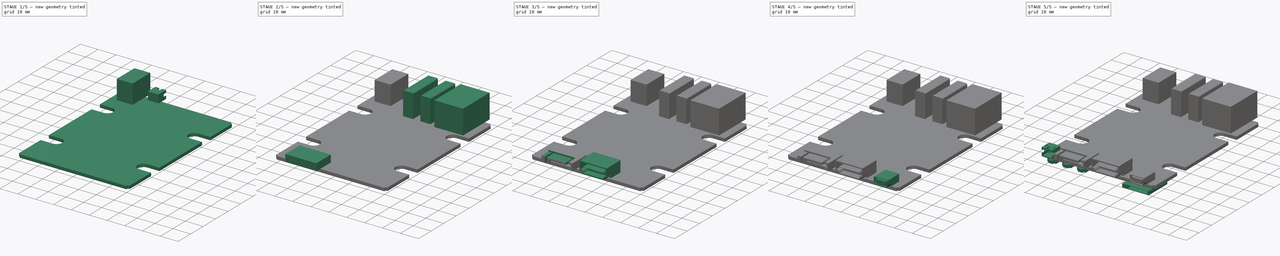
[diagram: build sequence overview — one tinted view per stage of 5, left to right]
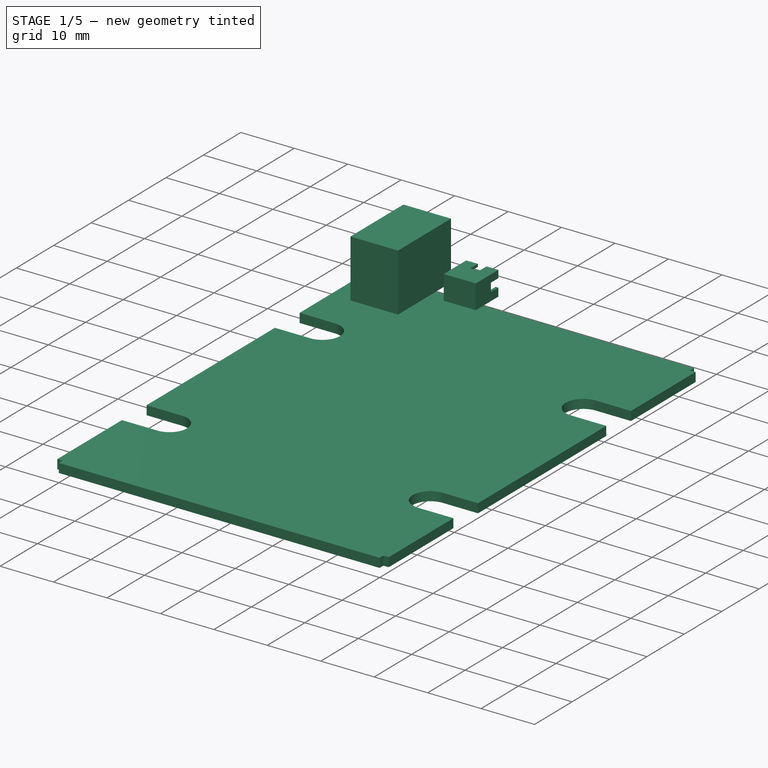
[diagram: stage 1 of 5 — iso view after this stage's code; geometry added in this stage tinted green]
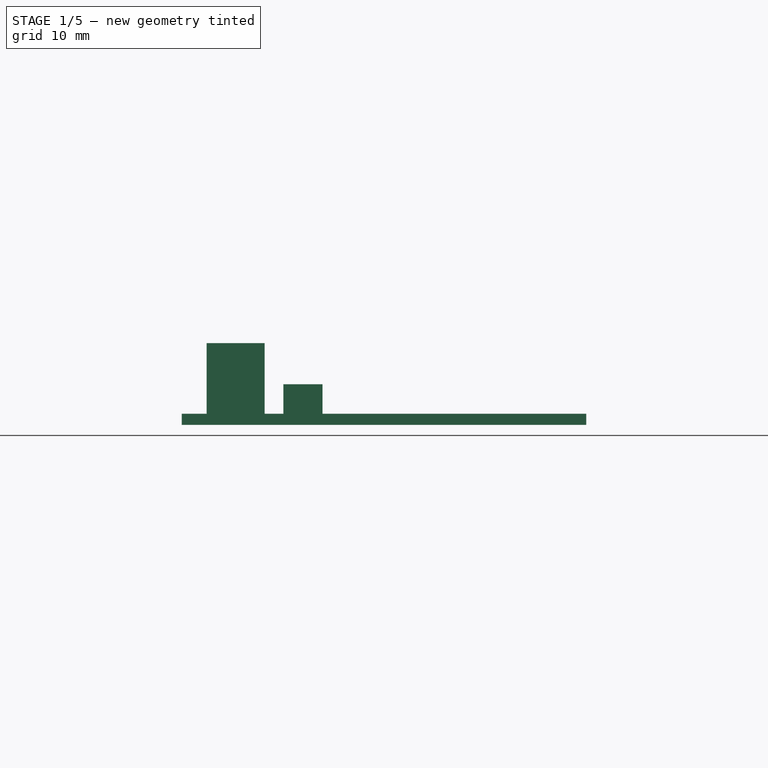
[diagram: stage 1 of 5 — front view after this stage's code; geometry added in this stage tinted green]
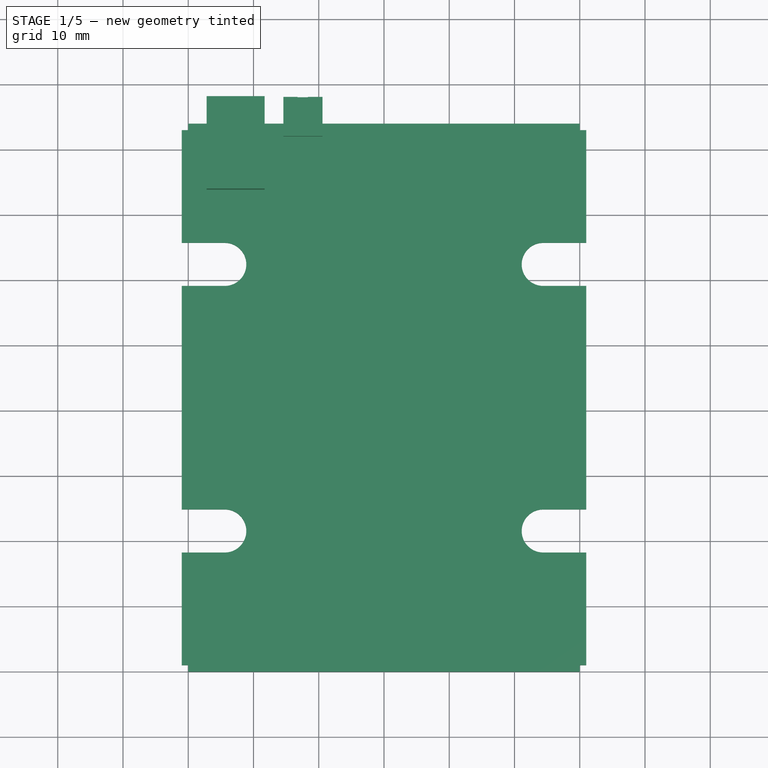
[diagram: stage 1 of 5 — top view after this stage's code; geometry added in this stage tinted green]
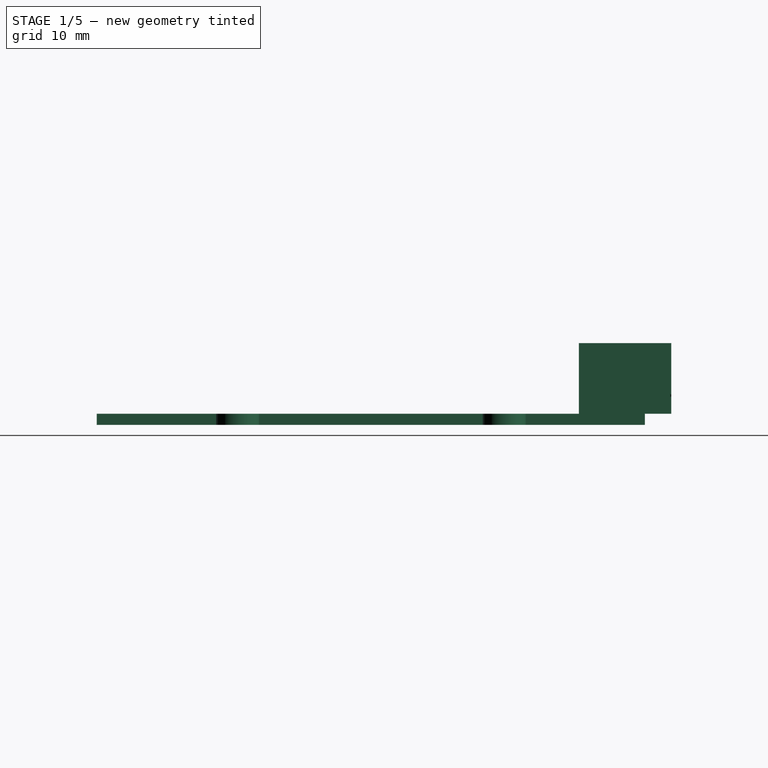
[diagram: stage 1 of 5 — right view after this stage's code; geometry added in this stage tinted green]
FCSTD DOCUMENT  (FreeCAD 0.14R2935 (Git))
Label: apc_0
License: CC-BY 3.0
LicenseURL: http://creativecommons.org/licenses/by/3.0/
objects: Sketcher::SketchObject×23, PartDesign::Fillet×16, PartDesign::Pocket×13, PartDesign::Pad×11, PartDesign::Chamfer×1
note: 88 computed .brp shape members not serialized (recipe doc carries the construction recipe); baked Part::Feature solids carry a one-line shape summary decoded from their .brp

FEATURE [Sketcher::SketchObject] Sketch
  sketch-geometry (30):
    g0: LineSegment StartX=0 StartY=0 StartZ=0 EndX=30 EndY=0 EndZ=0
    g1: LineSegment StartX=30 StartY=0 StartZ=0 EndX=30 EndY=1 EndZ=0
    g2: LineSegment StartX=30 StartY=1 StartZ=0 EndX=31 EndY=1 EndZ=0
    g3: LineSegment StartX=31 StartY=1 StartZ=0 EndX=31 EndY=18.27 EndZ=0
    g4: LineSegment StartX=31 StartY=18.27 StartZ=0 EndX=24.4 EndY=18.27 EndZ=0
    g5: ArcOfCircle CenterX=24.4 CenterY=21.57 CenterZ=0 NormalX=0 NormalY=0 NormalZ=1 Radius=3.3 StartAngle=1.5708 EndAngle=4.71239
    g6: LineSegment StartX=24.4 StartY=24.87 StartZ=0 EndX=31 EndY=24.87 EndZ=0
    g7: LineSegment StartX=31 StartY=24.87 StartZ=0 EndX=31 EndY=59.13 EndZ=0
    g8: LineSegment StartX=31 StartY=59.13 StartZ=0 EndX=24.4 EndY=59.13 EndZ=0
    g9: ArcOfCircle CenterX=24.4 CenterY=62.43 CenterZ=0 NormalX=0 NormalY=0 NormalZ=1 Radius=3.3 StartAngle=1.5708 EndAngle=4.71239
    g10: LineSegment StartX=24.4 StartY=65.73 StartZ=0 EndX=31 EndY=65.73 EndZ=0
    g11: LineSegment StartX=31 StartY=65.73 StartZ=0 EndX=31 EndY=83 EndZ=0
    g12: LineSegment StartX=30 StartY=84 StartZ=0 EndX=0 EndY=84 EndZ=0
    g13: LineSegment StartX=30 StartY=84 StartZ=0 EndX=30 EndY=83 EndZ=0
    g14: LineSegment StartX=30 StartY=83 StartZ=0 EndX=31 EndY=83 EndZ=0
    g15: LineSegment StartX=0 StartY=84 StartZ=0 EndX=-30 EndY=84 EndZ=0
    g16: LineSegment StartX=-30 StartY=84 StartZ=0 EndX=-30 EndY=83 EndZ=0
    g17: LineSegment StartX=-30 StartY=83 StartZ=0 EndX=-31 EndY=83 EndZ=0
    g18: LineSegment StartX=-31 StartY=83 StartZ=0 EndX=-31 EndY=65.73 EndZ=0
    g19: LineSegment StartX=-31 StartY=65.73 StartZ=0 EndX=-24.4 EndY=65.73 EndZ=0
    g20: ArcOfCircle CenterX=-24.4 CenterY=62.43 CenterZ=0 NormalX=0 NormalY=0 NormalZ=1 Radius=3.3 StartAngle=4.71239 EndAngle=7.85398
    g21: LineSegment StartX=-24.4 StartY=59.13 StartZ=0 EndX=-31 EndY=59.13 EndZ=0
    g22: LineSegment StartX=-31 StartY=59.13 StartZ=0 EndX=-31 EndY=24.87 EndZ=0
    g23: LineSegment StartX=-31 StartY=24.87 StartZ=0 EndX=-24.4 EndY=24.87 EndZ=0
    g24: ArcOfCircle CenterX=-24.4 CenterY=21.57 CenterZ=0 NormalX=0 NormalY=0 NormalZ=1 Radius=3.3 StartAngle=4.71239 EndAngle=7.85398
    g25: LineSegment StartX=-24.4 StartY=18.27 StartZ=0 EndX=-31 EndY=18.27 EndZ=0
    g26: LineSegment StartX=-31 StartY=18.27 StartZ=0 EndX=-31 EndY=1 EndZ=0
    g27: LineSegment StartX=-31 StartY=1 StartZ=0 EndX=-30 EndY=1 EndZ=0
    g28: LineSegment StartX=-30 StartY=1 StartZ=0 EndX=-30 EndY=0 EndZ=0
    g29: LineSegment StartX=-30 StartY=0 StartZ=0 EndX=0 EndY=0 EndZ=0
  constraints (90):
    c: Horizontal(g0)
    c: Coincident(g0,g1)
    c: Vertical(g1)
    c: Coincident(g1,g2)
    c: Horizontal(g2)
    c: Coincident(g2,g3)
    c: Vertical(g3)
    c: DistanceY(g1) = 1
    c: DistanceX(g2) = 1
    c: DistanceX(g0) = 30
    c: Coincident(g3,g4)
    c: Tangent(g4,g5)
    c: Tangent(g5,g6)
    c: Coincident(g6,g7)
    c: Vertical(g7)
    c: Equal(g4,g6)
    c: Horizontal(g6)
    c: Horizontal(g4)
    c: Radius(g5) = 3.3
    c: Equal(g4,g6)
    c: Coincident(g7,g8)
    c: Tangent(g8,g9)
    c: Tangent(g9,g10)
    c: Coincident(g10,g11)
    c: Vertical(g11)
    c: Equal(g10,g8)
    c: Parallel(g10,g8)
    c: Horizontal(g10)
    c: Equal(g6,g8)
    c: Equal(g9,g5)
    c: DistanceY(g3,g7) = 40.86
    c: Equal(g3,g11)
    c: Horizontal(g12)
    c: Equal(g0,g12)
    c: Coincident(g0,g-1)
    c: Coincident(g13,g12)
    c: Coincident(g14,g13)
    c: Coincident(g14,g11)
    c: Horizontal(g14)
    c: Perpendicular(g14,g13)
    c: Equal(g14,g2)
    c: Equal(g14,g2)
    c: Equal(g1,g13)
    c: Equal(g1,g13)
    c: Equal(g2,g14)
    c: DistanceY(g3) = 17.27
    c: DistanceX(g4) = -6.6
    c: Coincident(g12,g15)
    c: Horizontal(g15)
    c: Coincident(g15,g16)
    c: Vertical(g16)
    c: Coincident(g16,g17)
    c: Horizontal(g17)
    c: Coincident(g17,g18)
    c: Vertical(g18)
    c: Coincident(g18,g19)
    c: Horizontal(g19)
    c: Tangent(g19,g20)
    c: Tangent(g20,g21)
    c: Coincident(g21,g22)
    c: Vertical(g22)
    c: Coincident(g22,g23)
    c: Horizontal(g23)
    c: Tangent(g23,g24)
    c: Tangent(g24,g25)
    c: Coincident(g25,g26)
    c: Vertical(g26)
    c: Coincident(g26,g27)
    c: Horizontal(g27)
    c: Coincident(g27,g28)
    c: Vertical(g28)
    c: Coincident(g28,g29)
    c: Coincident(g29,g-1)
    c: Horizontal(g29)
    c: Equal(g28,g1)
    c: Equal(g1,g27)
    c: Equal(g29,g0)
    c: Equal(g26,g3)
    c: Equal(g25,g4)
    c: Horizontal(g25)
    c: Equal(g23,g25)
    c: Equal(g24,g5)
    c: Equal(g22,g7)
    c: Equal(g21,g8)
    c: Equal(g19,g21)
    c: Parallel(g19,g21)
    c: Equal(g16,g17)
    c: Equal(g17,g14)
    c: Equal(g15,g12)
    c: Equal(g20,g9)
FEATURE [PartDesign::Pad] Pad
  Length = 1.7
  Length2 = 100
  Sketch = -> Sketch
  Type = 0
FEATURE [PartDesign::Pad] Pad009
  Length = 4.52
  Length2 = 100
  Sketch = -> Sketch002
  Type = 0
FEATURE [PartDesign::Pad] Pad010
  Length = 10.82
  Length2 = 100
  Sketch = -> Sketch001
  Type = 0
FEATURE [Sketcher::SketchObject] Sketch021
  ExternalGeometry = -> [Pad010]
  Placement = pos=(0,88.03,0) rot=(0,0.707107,0.707107;3.14159rad)
  Support = -> Pad010 [Face37]
  sketch-geometry (4):
    g0: Circle CenterX=22.74 CenterY=8.02 CenterZ=0 NormalX=0 NormalY=0 NormalZ=1 Radius=3.185
    g1: Circle CenterX=22.74 CenterY=8.02 CenterZ=0 NormalX=0 NormalY=0 NormalZ=1 Radius=1
    g2: LineSegment [constr] StartX=22.74 StartY=12.52 StartZ=0 EndX=22.74 EndY=1.7 EndZ=0
    g3: LineSegment [constr] StartX=18.29 StartY=8.02 StartZ=0 EndX=27.19 EndY=8.02 EndZ=0
  constraints (13):
    c: Radius(g1) = 1
    c: Radius(g0) = 3.185
    c: Vertical(g2)
    c: Horizontal(g3)
    c: DistanceX(g2,g-4) = 4.45
    c: PointOnObject(g2,g-4)
    c: PointOnObject(g2,g-5)
    c: DistanceY(g3,g-4) = 4.5
    c: PointOnObject(g3,g-3)
    c: PointOnObject(g3,g-6)
    c: PointOnObject(g0,g2)
    c: Coincident(g1,g0)
    c: PointOnObject(g0,g3)
FEATURE [PartDesign::Pocket] Pocket010
  Length = 10
  Sketch = -> Sketch021
  Type = 0
FEATURE [PartDesign::Fillet] Fillet014
  Base = -> Pocket010 [Edge111]
  Radius = 1
FEATURE [Sketcher::SketchObject] Sketch022
  ExternalGeometry = -> [Pad009]
  Placement = pos=(0,88.03,0) rot=(0,0.707107,0.707107;3.14159rad)
  Support = -> Pad009 [Face37]
  sketch-geometry (12):
    g0: LineSegment StartX=9.93 StartY=5.72 StartZ=0 EndX=14.93 EndY=5.72 EndZ=0
    g1: LineSegment StartX=14.93 StartY=5.72 StartZ=0 EndX=14.93 EndY=2.2 EndZ=0
    g2: LineSegment StartX=14.93 StartY=2.2 StartZ=0 EndX=9.93 EndY=2.2 EndZ=0
    g3: LineSegment StartX=9.93 StartY=2.2 StartZ=0 EndX=9.93 EndY=5.72 EndZ=0
    g4: LineSegment StartX=11.25 StartY=4.76 StartZ=0 EndX=11.75 EndY=4.76 EndZ=0
    g5: LineSegment StartX=11.75 StartY=4.76 StartZ=0 EndX=11.75 EndY=4.26 EndZ=0
    g6: LineSegment StartX=11.75 StartY=4.26 StartZ=0 EndX=11.25 EndY=4.26 EndZ=0
    g7: LineSegment StartX=11.25 StartY=4.26 StartZ=0 EndX=11.25 EndY=4.76 EndZ=0
    g8: LineSegment StartX=13.25 StartY=4.76 StartZ=0 EndX=13.75 EndY=4.76 EndZ=0
    g9: LineSegment StartX=13.75 StartY=4.76 StartZ=0 EndX=13.75 EndY=4.26 EndZ=0
    g10: LineSegment StartX=13.75 StartY=4.26 StartZ=0 EndX=13.25 EndY=4.26 EndZ=0
    g11: LineSegment StartX=13.25 StartY=4.26 StartZ=0 EndX=13.25 EndY=4.76 EndZ=0
  constraints (40):
    c: Coincident(g0,g1)
    c: Coincident(g1,g2)
    c: Coincident(g2,g3)
    c: Coincident(g3,g0)
    c: Horizontal(g0)
    c: Horizontal(g2)
    c: Vertical(g1)
    c: Vertical(g3)
    c: DistanceX(g0,g-4) = 0.5
    c: DistanceY(g0,g-4) = 0.5
    c: DistanceX(g2,g-6) = -0.5
    c: DistanceY(g2,g-6) = -0.5
    c: Coincident(g4,g5)
    c: Coincident(g5,g6)
    c: Coincident(g6,g7)
    c: Coincident(g7,g4)
    c: Horizontal(g4)
    c: Horizontal(g6)
    c: Vertical(g5)
    c: Vertical(g7)
    c: Coincident(g8,g9)
    c: Coincident(g9,g10)
    c: Coincident(g10,g11)
    c: Coincident(g11,g8)
    c: Horizontal(g8)
    c: Horizontal(g10)
    c: Vertical(g9)
    c: Vertical(g11)
    c: Equal(g10,g9)
    c: Equal(g9,g8)
    c: Equal(g8,g11)
    c: Equal(g11,g5)
    c: Equal(g5,g6)
    c: Equal(g6,g7)
    c: Equal(g7,g4)
    c: DistanceX(g6,g9) = 2.5
    c: DistanceX(g6) = -0.5
    c: DistanceY(g5,g10) = 0
    c: DistanceX(g5,g-5) = -2.32
    c: DistanceY(g6,g-5) = 1.96
FEATURE [PartDesign::Pocket] Pocket011
  Length = 5
  Sketch = -> Sketch022
  Type = 0
FEATURE [Sketcher::SketchObject] Sketch023
  ExternalGeometry = -> [Pocket011]
  Placement = pos=(0,88.03,0) rot=(0,0.707107,0.707107;3.14159rad)
  Support = -> Pocket011 [Face37]
  sketch-geometry (12):
    g0: LineSegment StartX=9.43 StartY=4.82 StartZ=0 EndX=9.93 EndY=4.82 EndZ=0
    g1: LineSegment StartX=9.93 StartY=4.82 StartZ=0 EndX=9.93 EndY=3.22 EndZ=0
    g2: LineSegment StartX=9.93 StartY=3.22 StartZ=0 EndX=9.43 EndY=3.22 EndZ=0
    g3: LineSegment StartX=9.43 StartY=3.22 StartZ=0 EndX=9.43 EndY=4.82 EndZ=0
    g4: LineSegment StartX=14.93 StartY=4.82 StartZ=0 EndX=15.43 EndY=4.82 EndZ=0
    g5: LineSegment StartX=15.43 StartY=4.82 StartZ=0 EndX=15.43 EndY=3.22 EndZ=0
    g6: LineSegment StartX=15.43 StartY=3.22 StartZ=0 EndX=14.93 EndY=3.22 EndZ=0
    g7: LineSegment StartX=14.93 StartY=3.22 StartZ=0 EndX=14.93 EndY=4.82 EndZ=0
    g8: LineSegment StartX=11.65 StartY=6.22 StartZ=0 EndX=13.25 EndY=6.22 EndZ=0
    g9: LineSegment StartX=13.25 StartY=6.22 StartZ=0 EndX=13.25 EndY=5.72 EndZ=0
    g10: LineSegment StartX=13.25 StartY=5.72 StartZ=0 EndX=11.65 EndY=5.72 EndZ=0
    g11: LineSegment StartX=11.65 StartY=5.72 StartZ=0 EndX=11.65 EndY=6.22 EndZ=0
  constraints (42):
    c: Coincident(g0,g1)
    c: Coincident(g1,g2)
    c: Coincident(g2,g3)
    c: Coincident(g3,g0)
    c: Horizontal(g0)
    c: Horizontal(g2)
    c: Vertical(g1)
    c: Vertical(g3)
    c: Coincident(g4,g5)
    c: Coincident(g5,g6)
    c: Coincident(g6,g7)
    c: Coincident(g7,g4)
    c: Horizontal(g4)
    c: Horizontal(g6)
    c: Vertical(g5)
    c: Vertical(g7)
    c: Coincident(g8,g9)
    c: Coincident(g9,g10)
    c: Coincident(g10,g11)
    c: Coincident(g11,g8)
    c: Horizontal(g8)
    c: Horizontal(g10)
    c: Vertical(g9)
    c: Vertical(g11)
    c: Equal(g11,g9)
    c: Equal(g9,g0)
    c: Equal(g0,g2)
    c: Equal(g2,g4)
    c: Equal(g4,g6)
    c: Equal(g1,g3)
    c: Equal(g3,g10)
    c: Equal(g10,g8)
    c: Equal(g8,g7)
    c: Equal(g7,g5)
    c: DistanceX(g10) = -1.6
    c: PointOnObject(g5,g-8)
    c: PointOnObject(g6,g-7)
    c: PointOnObject(g2,g-3)
    c: PointOnObject(g8,g-5)
    c: DistanceY(g6,g1) = 0
    c: DistanceY(g0,g-5) = 1.4
    c: DistanceX(g-5,g8) = 2.22003
FEATURE [PartDesign::Pocket] Pocket012
  Length = 2
  Sketch = -> Sketch023
  Type = 0
FEATURE [PartDesign::Fillet] Fillet015
  Base = -> Pocket012 [Edge164,Edge166,Edge168,Edge170,Edge172,Edge174,Edge176,Edge178]
  Radius = 0.2
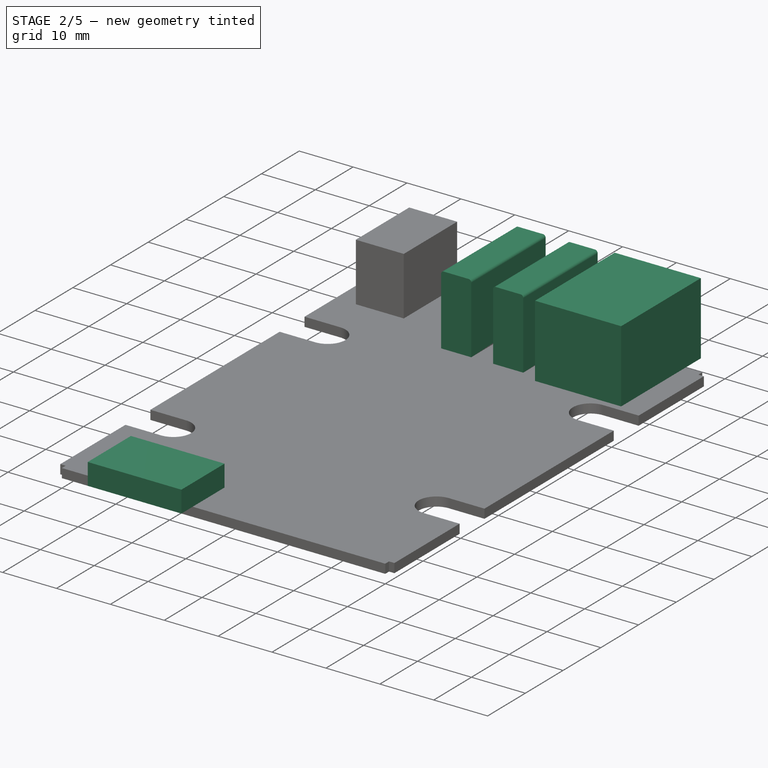
[diagram: stage 2 of 5 — iso view after this stage's code; geometry added in this stage tinted green]
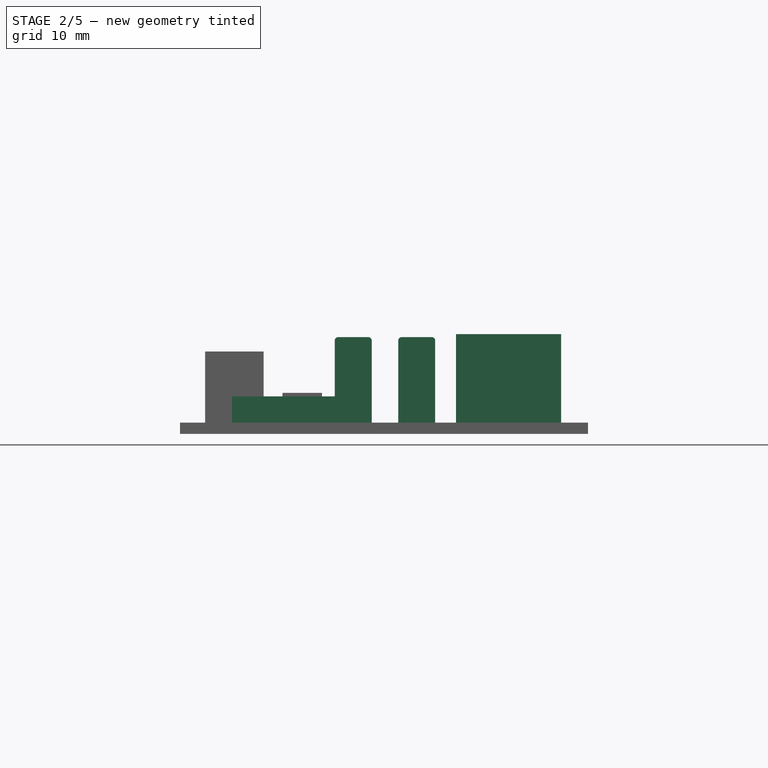
[diagram: stage 2 of 5 — front view after this stage's code; geometry added in this stage tinted green]
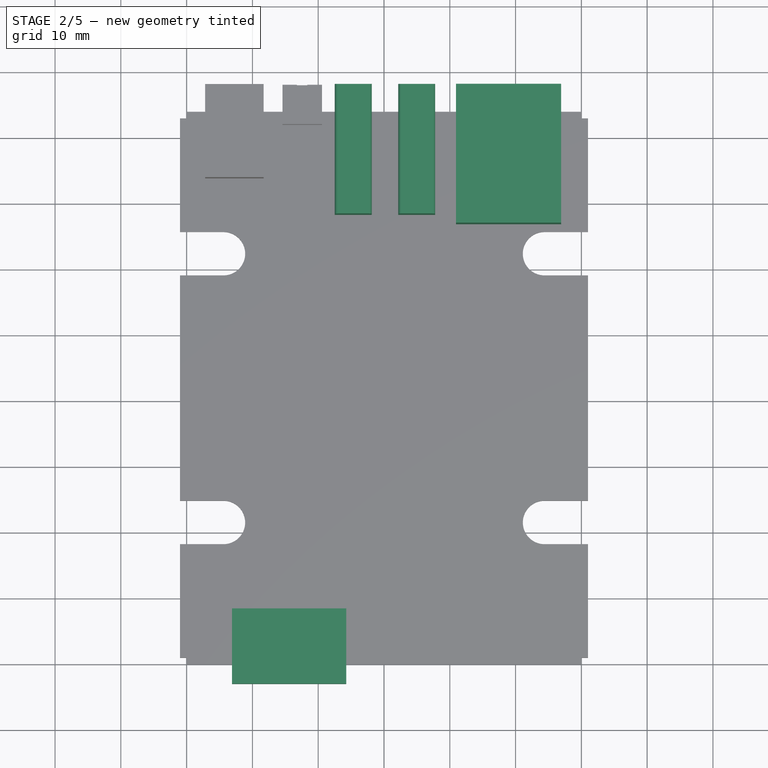
[diagram: stage 2 of 5 — top view after this stage's code; geometry added in this stage tinted green]
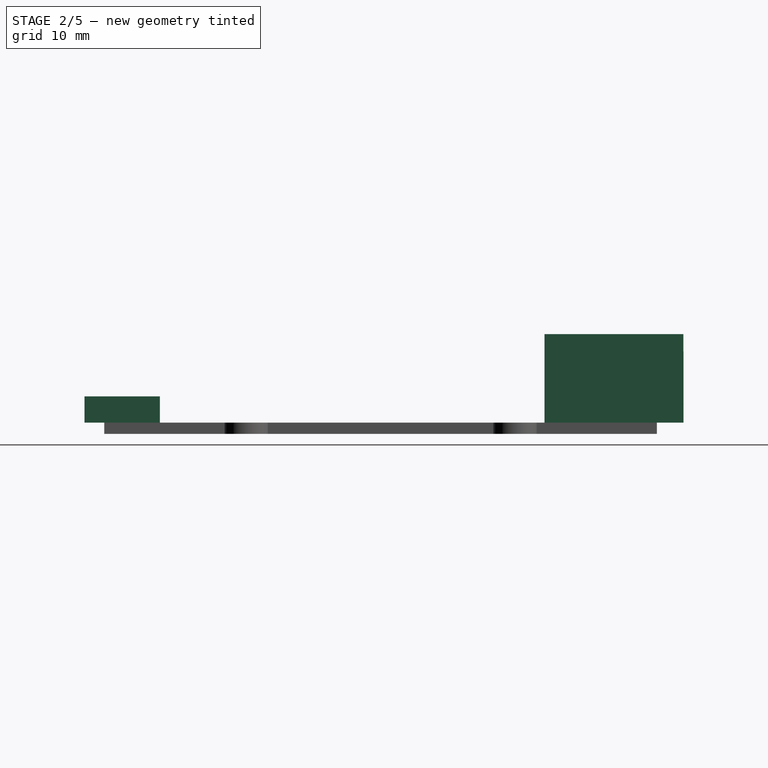
[diagram: stage 2 of 5 — right view after this stage's code; geometry added in this stage tinted green]
FEATURE [PartDesign::Pad] Pad004
  Length = 4
  Length2 = 100
  Sketch = -> Sketch007
  Type = 0
FEATURE [PartDesign::Pad] Pad007
  Length = 13.45
  Length2 = 100
  Sketch = -> Sketch004
  Type = 0
FEATURE [PartDesign::Pad] Pad008
  Length = 13
  Length2 = 100
  Sketch = -> Sketch003
  Type = 0
FEATURE [Sketcher::SketchObject] Sketch019
  ExternalGeometry = -> [Pad007]
  Placement = pos=(0,88.02,0) rot=(0,0.707107,0.707107;3.14159rad)
  Support = -> Pad007 [Face37]
  sketch-geometry (12):
    g0: LineSegment StartX=-24.825 StartY=12.65 StartZ=0 EndX=-24.825 EndY=5.72 EndZ=0
    g1: LineSegment StartX=-24.825 StartY=5.72 StartZ=0 EndX=-21.915 EndY=5.72 EndZ=0
    g2: LineSegment StartX=-21.915 StartY=5.72 StartZ=0 EndX=-21.915 EndY=4.02 EndZ=0
    g3: LineSegment StartX=-21.915 StartY=4.02 StartZ=0 EndX=-20.97 EndY=4.02 EndZ=0
    g4: LineSegment StartX=-20.97 StartY=4.02 StartZ=0 EndX=-20.97 EndY=2.6 EndZ=0
    g5: LineSegment StartX=-20.97 StartY=2.6 StartZ=0 EndX=-16.9 EndY=2.6 EndZ=0
    g6: LineSegment StartX=-16.9 StartY=2.6 StartZ=0 EndX=-16.9 EndY=4.02 EndZ=0
    g7: LineSegment StartX=-16.9 StartY=4.02 StartZ=0 EndX=-15.955 EndY=4.02 EndZ=0
    g8: LineSegment StartX=-15.955 StartY=4.02 StartZ=0 EndX=-15.955 EndY=5.72 EndZ=0
    g9: LineSegment StartX=-15.955 StartY=5.72 StartZ=0 EndX=-13.045 EndY=5.72 EndZ=0
    g10: LineSegment StartX=-13.045 StartY=5.72 StartZ=0 EndX=-13.045 EndY=12.65 EndZ=0
    g11: LineSegment StartX=-13.045 StartY=12.65 StartZ=0 EndX=-24.825 EndY=12.65 EndZ=0
  constraints (36):
    c: Vertical(g0)
    c: Coincident(g0,g1)
    c: Horizontal(g1)
    c: Coincident(g1,g2)
    c: Vertical(g2)
    c: Coincident(g2,g3)
    c: Horizontal(g3)
    c: Coincident(g3,g4)
    c: Vertical(g4)
    c: Coincident(g4,g5)
    c: Horizontal(g5)
    c: Coincident(g5,g6)
    c: Vertical(g6)
    c: Coincident(g6,g7)
    c: Horizontal(g7)
    c: Coincident(g7,g8)
    c: Vertical(g8)
    c: Coincident(g8,g9)
    c: Horizontal(g9)
    c: Coincident(g9,g10)
    c: Vertical(g10)
    c: Coincident(g10,g11)
    c: Coincident(g11,g0)
    c: Horizontal(g11)
    c: DistanceX(g5,g4) = -4.07
    c: DistanceX(g1,g-6) = -5.01
    c: Equal(g9,g1)
    c: DistanceX(g0,g-5) = -2.1
    c: DistanceX(g10,g-5) = 2.1
    c: Equal(g3,g7)
    c: DistanceY(g5,g-6) = -0.9
    c: DistanceY(g0,g-6) = -4.02
    c: Equal(g2,g8)
    c: Equal(g4,g6)
    c: DistanceY(g3,g-6) = -2.32
    c: DistanceY(g0,g-5) = 2.5
FEATURE [PartDesign::Pocket] Pocket008
  Length = 15
  Sketch = -> Sketch019
  Type = 0
FEATURE [Sketcher::SketchObject] Sketch020
  ExternalGeometry = -> [Pad008]
  Placement = pos=(0,88.02,0) rot=(0,0.707107,0.707107;3.14159rad)
  Support = -> Pad008 [Face41]
  sketch-geometry (16):
    g0: LineSegment StartX=-7.28 StartY=14.2 StartZ=0 EndX=-2.67 EndY=14.2 EndZ=0
    g1: LineSegment StartX=-2.67 StartY=14.2 StartZ=0 EndX=-2.67 EndY=2.55 EndZ=0
    g2: LineSegment StartX=-2.67 StartY=2.55 StartZ=0 EndX=-7.28 EndY=2.55 EndZ=0
    g3: LineSegment StartX=-7.28 StartY=2.55 StartZ=0 EndX=-7.28 EndY=14.2 EndZ=0
    g4: LineSegment StartX=2.37 StartY=14.2 StartZ=0 EndX=6.98 EndY=14.2 EndZ=0
    g5: LineSegment StartX=6.98 StartY=14.2 StartZ=0 EndX=6.98 EndY=2.55 EndZ=0
    g6: LineSegment StartX=6.98 StartY=2.55 StartZ=0 EndX=2.37 EndY=2.55 EndZ=0
    g7: LineSegment StartX=2.37 StartY=2.55 StartZ=0 EndX=2.37 EndY=14.2 EndZ=0
    g8: LineSegment StartX=-6.78 StartY=13.7 StartZ=0 EndX=-5.78 EndY=13.7 EndZ=0
    g9: LineSegment StartX=-5.78 StartY=13.7 StartZ=0 EndX=-5.78 EndY=2.95 EndZ=0
    g10: LineSegment StartX=-5.78 StartY=2.95 StartZ=0 EndX=-6.78 EndY=2.95 EndZ=0
    g11: LineSegment StartX=-6.78 StartY=2.95 StartZ=0 EndX=-6.78 EndY=13.7 EndZ=0
    g12: LineSegment StartX=2.87 StartY=13.7 StartZ=0 EndX=3.87 EndY=13.7 EndZ=0
    g13: LineSegment StartX=3.87 StartY=13.7 StartZ=0 EndX=3.87 EndY=2.95 EndZ=0
    g14: LineSegment StartX=3.87 StartY=2.95 StartZ=0 EndX=2.87 EndY=2.95 EndZ=0
    g15: LineSegment StartX=2.87 StartY=2.95 StartZ=0 EndX=2.87 EndY=13.7 EndZ=0
  constraints (48):
    c: Coincident(g0,g1)
    c: Coincident(g1,g2)
    c: Coincident(g2,g3)
    c: Coincident(g3,g0)
    c: Horizontal(g0)
    c: Horizontal(g2)
    c: Vertical(g1)
    c: Vertical(g3)
    c: Coincident(g4,g5)
    c: Coincident(g5,g6)
    c: Coincident(g6,g7)
    c: Coincident(g7,g4)
    c: Horizontal(g4)
    c: Horizontal(g6)
    c: Vertical(g5)
    c: Vertical(g7)
    c: Coincident(g8,g9)
    c: Coincident(g9,g10)
    c: Coincident(g10,g11)
    c: Coincident(g11,g8)
    c: Horizontal(g8)
    c: Horizontal(g10)
    c: Vertical(g9)
    c: Vertical(g11)
    c: Coincident(g12,g13)
    c: Coincident(g13,g14)
    c: Coincident(g14,g15)
    c: Coincident(g15,g12)
    c: Horizontal(g12)
    c: Horizontal(g14)
    c: Vertical(g13)
    c: Vertical(g15)
    c: DistanceX(g4,g-8) = 0.5
    c: DistanceY(g4,g-8) = 0.5
    c: DistanceY(g5,g-10) = -0.85
    c: DistanceX(g6,g-10) = -0.5
    c: DistanceX(g14,g13) = 1
    c: DistanceY(g13) = -10.75
    c: DistanceX(g0,g-7) = 0.5
    c: DistanceY(g0,g-7) = 0.5
    c: Equal(g9,g15)
    c: Equal(g8,g12)
    c: Equal(g4,g0)
    c: Equal(g1,g7)
    c: DistanceY(g8,g0) = 0.5
    c: DistanceX(g8,g0) = -0.5
    c: DistanceX(g12,g4) = -0.5
    c: DistanceY(g12,g4) = 0.5
FEATURE [PartDesign::Pocket] Pocket009
  Length = 18
  Sketch = -> Sketch020
  Type = 0
FEATURE [PartDesign::Fillet] Fillet012
  Base = -> Pocket009 [Edge103,Edge107,Edge112,Edge116,Edge117,Edge108,Edge102,Edge111]
  Radius = 0.5
FEATURE [PartDesign::Fillet] Fillet013
  Base = -> Fillet012 [Edge152,Edge173,Edge155,Edge176,Edge150,Edge171,Edge153,Edge174]
  Radius = 0.5
FEATURE [PartDesign::Chamfer] Chamfer
  Base = -> Fillet013 [Edge96,Edge215,Edge221,Edge102]
  Size = 0.3
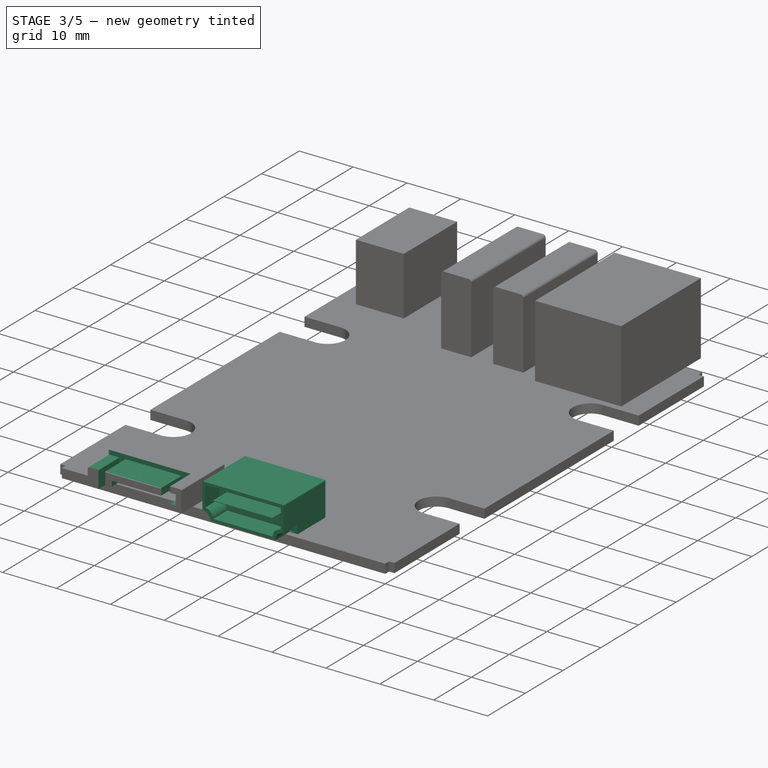
[diagram: stage 3 of 5 — iso view after this stage's code; geometry added in this stage tinted green]
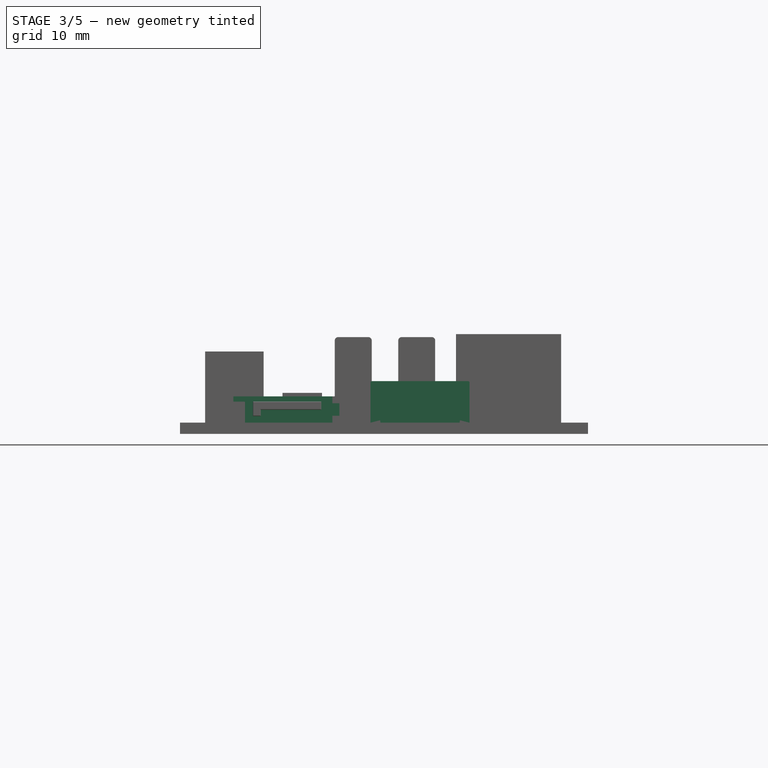
[diagram: stage 3 of 5 — front view after this stage's code; geometry added in this stage tinted green]
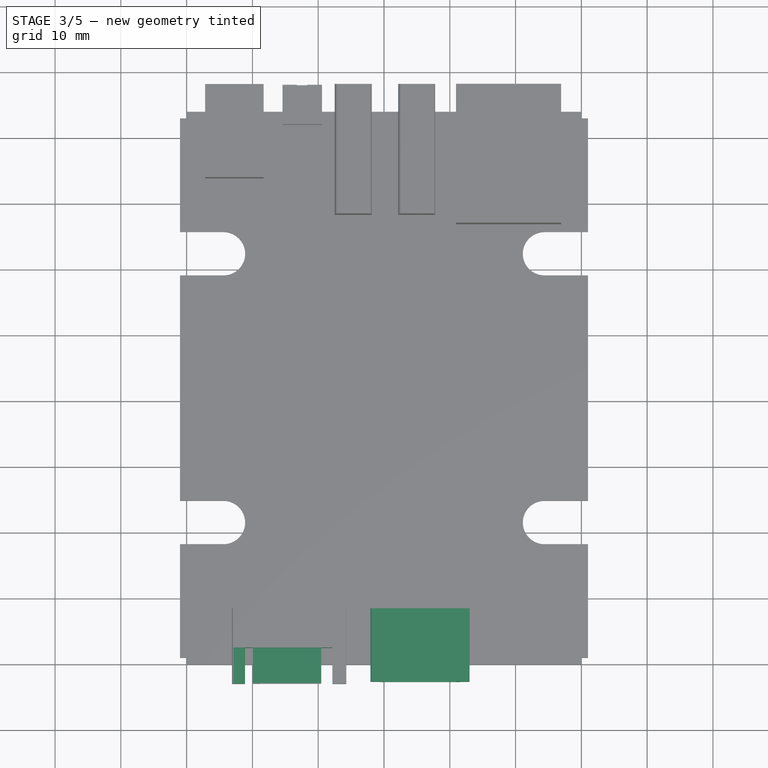
[diagram: stage 3 of 5 — top view after this stage's code; geometry added in this stage tinted green]
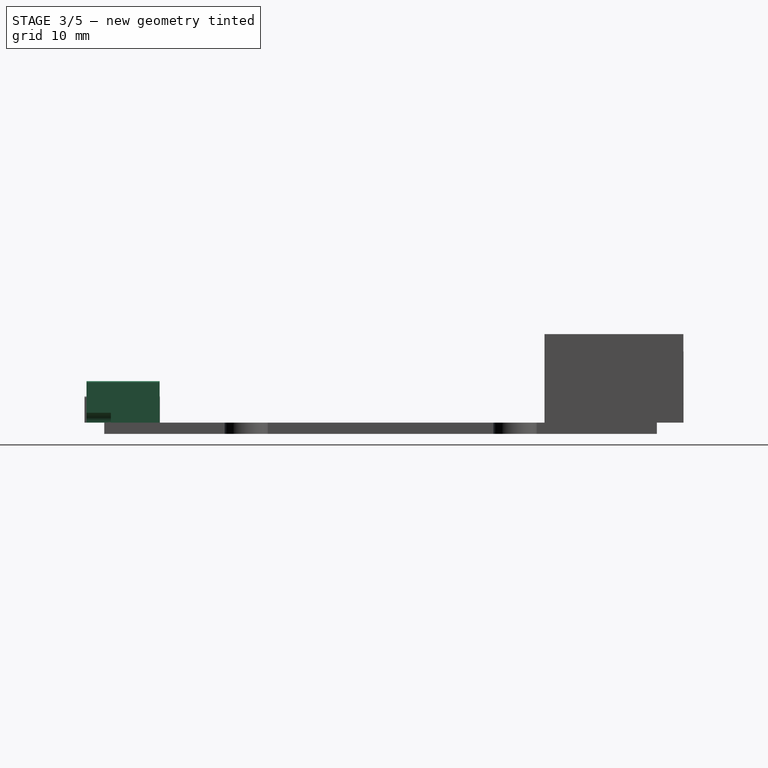
[diagram: stage 3 of 5 — right view after this stage's code; geometry added in this stage tinted green]
FEATURE [PartDesign::Pad] Pad005
  Length = 6.31
  Length2 = 100
  Sketch = -> Sketch006
  Type = 0
FEATURE [Sketcher::SketchObject] Sketch012
  ExternalGeometry = -> [Pad005]
  Placement = pos=(0,-2.7,0) rot=(1,0,0;1.5708rad)
  Support = -> Pad005 [Face37]
  sketch-geometry (18):
    g0: LineSegment StartX=-2.05 StartY=1.7 StartZ=0 EndX=-2.05 EndY=3.2 EndZ=0
    g1: ArcOfCircle CenterX=-2.05 CenterY=1.7 CenterZ=0 NormalX=0 NormalY=0 NormalZ=1 Radius=1.5 StartAngle=0 EndAngle=1.5708
    g2: LineSegment StartX=-2.05 StartY=1.7 StartZ=0 EndX=-0.55 EndY=1.7 EndZ=0
    g3: LineSegment StartX=13 StartY=3.2 StartZ=0 EndX=13 EndY=1.7 EndZ=0
    g4: LineSegment StartX=13 StartY=1.7 StartZ=0 EndX=11.5 EndY=1.7 EndZ=0
    g5: ArcOfCircle CenterX=13 CenterY=1.7 CenterZ=0 NormalX=0 NormalY=0 NormalZ=1 Radius=1.5 StartAngle=1.5708 EndAngle=3.14159
    g6: GeomPoint [constr] X=13 Y=3.2 Z=0
    g7: GeomPoint [constr] X=13 Y=1.7 Z=0
    g8: LineSegment StartX=-1.55 StartY=7.51 StartZ=0 EndX=12.5 EndY=7.51 EndZ=0
    g9: LineSegment StartX=12.5 StartY=7.51 StartZ=0 EndX=12.5 EndY=3.7 EndZ=0
    g10: ArcOfCircle CenterX=12.5 CenterY=2.2 CenterZ=0 NormalX=0 NormalY=0 NormalZ=1 Radius=1.5 StartAngle=1.5708 EndAngle=3.14159
    g11: LineSegment StartX=11 StartY=2.2 StartZ=0 EndX=-0.05 EndY=2.2 EndZ=0
    g12: ArcOfCircle CenterX=-1.55 CenterY=2.2 CenterZ=0 NormalX=0 NormalY=0 NormalZ=1 Radius=1.5 StartAngle=0 EndAngle=1.5708
    g13: LineSegment StartX=-1.55 StartY=3.7 StartZ=0 EndX=-1.55 EndY=7.51 EndZ=0
    g14: LineSegment StartX=-0.07687 StartY=5.3 StartZ=0 EndX=10.9731 EndY=5.3 EndZ=0
    g15: LineSegment StartX=10.9731 StartY=5.3 StartZ=0 EndX=10.9731 EndY=5.2 EndZ=0
    g16: LineSegment StartX=10.9731 StartY=5.2 StartZ=0 EndX=-0.07687 EndY=5.2 EndZ=0
    g17: LineSegment StartX=-0.07687 StartY=5.2 StartZ=0 EndX=-0.07687 EndY=5.3 EndZ=0
  constraints (48):
    c: Vertical(g0)
    c: Perpendicular(g0,g1)
    c: Coincident(g2,g0)
    c: Coincident(g2,g1)
    c: Horizontal(g2)
    c: Radius(g1) = 1.5
    c: Coincident(g1,g0)
    c: Coincident(g0,g-4)
    c: Vertical(g3)
    c: Coincident(g3,g4)
    c: Horizontal(g4)
    c: Perpendicular(g4,g5)
    c: Radius(g5) = 1.5
    c: Coincident(g5,g3)
    c: Coincident(g6,g3)
    c: Coincident(g5,g3)
    c: Coincident(g7,g-5)
    c: Coincident(g3,g7)
    c: Horizontal(g8)
    c: Coincident(g8,g9)
    c: Vertical(g9)
    c: Perpendicular(g9,g10)
    c: Horizontal(g11)
    c: Perpendicular(g11,g12)
    c: Coincident(g12,g13)
    c: Coincident(g13,g8)
    c: Coincident(g10,g11)
    c: Equal(g10,g5)
    c: Equal(g12,g1)
    c: DistanceX(g9,g3) = 0.5
    c: DistanceY(g9,g3) = -0.5
    c: DistanceY(g10,g4) = -0.5
    c: DistanceY(g-6,g8) = -0.5
    c: DistanceX(g8,g-6) = -0.5
    c: Vertical(g13)
    c: DistanceX(g1,g11) = 0.5
    c: Coincident(g14,g15)
    c: Coincident(g15,g16)
    c: Coincident(g16,g17)
    c: Coincident(g17,g14)
    c: Horizontal(g14)
    c: Horizontal(g16)
    c: Vertical(g15)
    c: Vertical(g17)
    c: Equal(g16,g11)
    c: DistanceY(g16,g14) = 0.1
    c: DistanceY(g15,g10) = -3
    c: DistanceX(g15,g9) = 1.52687
FEATURE [PartDesign::Pocket] Pocket001
  Length = 3.7
  Sketch = -> Sketch012
  Type = 0
FEATURE [Sketcher::SketchObject] Sketch013
  ExternalGeometry = -> [Pad004]
  Placement = pos=(0,-3,0) rot=(1,0,0;1.5708rad)
  Support = -> Pad004 [Face37]
  sketch-geometry (16):
    g0: LineSegment StartX=-23.1 StartY=5.7 StartZ=0 EndX=-23.1 EndY=4.89 EndZ=0
    g1: LineSegment StartX=-23.1 StartY=4.89 StartZ=0 EndX=-21.13 EndY=4.89 EndZ=0
    g2: LineSegment StartX=-21.13 StartY=4.89 StartZ=0 EndX=-21.13 EndY=1.7 EndZ=0
    g3: LineSegment StartX=-21.13 StartY=1.7 StartZ=0 EndX=-7.85 EndY=1.7 EndZ=0
    g4: LineSegment StartX=-7.85 StartY=1.7 StartZ=0 EndX=-7.85 EndY=2.75 EndZ=0
    g5: LineSegment StartX=-7.85 StartY=2.75 StartZ=0 EndX=-6.78 EndY=2.75 EndZ=0
    g6: LineSegment StartX=-6.78 StartY=2.75 StartZ=0 EndX=-6.78 EndY=4.65 EndZ=0
    g7: LineSegment StartX=-6.78 StartY=4.65 StartZ=0 EndX=-7.85 EndY=4.65 EndZ=0
    g8: LineSegment StartX=-7.85 StartY=4.65 StartZ=0 EndX=-7.85 EndY=5.7 EndZ=0
    g9: LineSegment StartX=-7.85 StartY=5.7 StartZ=0 EndX=-23.1 EndY=5.7 EndZ=0
    g10: LineSegment StartX=-19.93 StartY=2.7 StartZ=0 EndX=-19.93 EndY=4.92 EndZ=0
    g11: LineSegment StartX=-19.93 StartY=4.92 StartZ=0 EndX=-9.53 EndY=4.92 EndZ=0
    g12: LineSegment StartX=-9.53 StartY=4.92 StartZ=0 EndX=-9.53 EndY=3.67 EndZ=0
    g13: LineSegment StartX=-9.53 StartY=3.67 StartZ=0 EndX=-18.74 EndY=3.67 EndZ=0
    g14: LineSegment StartX=-18.74 StartY=3.67 StartZ=0 EndX=-18.74 EndY=2.7 EndZ=0
    g15: LineSegment StartX=-18.74 StartY=2.7 StartZ=0 EndX=-19.93 EndY=2.7 EndZ=0
  constraints (47):
    c: Coincident(g-4,g0)
    c: PointOnObject(g0,g-4)
    c: Coincident(g0,g1)
    c: Horizontal(g1)
    c: Coincident(g1,g2)
    c: PointOnObject(g2,g-5)
    c: Vertical(g2)
    c: Coincident(g2,g3)
    c: PointOnObject(g3,g-5)
    c: Coincident(g3,g4)
    c: Vertical(g4)
    c: Coincident(g4,g5)
    c: Horizontal(g5)
    c: Coincident(g5,g6)
    c: Vertical(g6)
    c: Coincident(g6,g7)
    c: Horizontal(g7)
    c: Coincident(g7,g8)
    c: Vertical(g8)
    c: Coincident(g8,g9)
    c: Coincident(g9,g0)
    c: Horizontal(g9)
    c: Vertical(g10)
    c: Coincident(g10,g11)
    c: Horizontal(g11)
    c: Coincident(g11,g12)
    c: Vertical(g12)
    c: Coincident(g12,g13)
    c: Horizontal(g13)
    c: Coincident(g13,g14)
    c: Vertical(g14)
    c: Coincident(g14,g15)
    c: Coincident(g15,g10)
    c: Horizontal(g15)
    c: DistanceY(g11,g12) = -1.25
    c: DistanceX(g10,g14) = 1.19
    c: DistanceX(g11) = 10.4
    c: DistanceY(g10,g10) = -2.22
    c: DistanceY(g0,g-5) = -3.19
    c: DistanceX(g1) = 1.97
    c: DistanceX(g6,g-6) = 1.05
    c: DistanceY(g3,g4) = 1.05
    c: Equal(g4,g8)
    c: DistanceY(g10,g2) = -1
    c: DistanceX(g10,g1) = -1.2
    c: DistanceX(g8,g-6) = 2.12
    c: DistanceX(g3,g-6) = 2.12
FEATURE [PartDesign::Pocket] Pocket002
  Length = 5.49
  Sketch = -> Sketch013
  Type = 0
FEATURE [PartDesign::Fillet] Fillet002
  Base = -> Pocket001 [Edge112]
  Radius = 0.2
FEATURE [PartDesign::Fillet] Fillet003
  Base = -> Fillet002 [Edge7]
  Radius = 0.2
FEATURE [PartDesign::Fillet] Fillet004
  Base = -> Pocket002 [Edge106]
  Radius = 0.2
FEATURE [PartDesign::Fillet] Fillet005
  Base = -> Fillet004 [Edge7]
  Radius = 0.2
FEATURE [PartDesign::Fillet] Fillet006
  Base = -> Fillet005 [Edge19]
  Radius = 0.2
FEATURE [PartDesign::Fillet] Fillet011
  Base = -> Fillet006 [Edge71,Edge93,Edge97,Edge101,Edge103,Edge100,Edge96]
  Radius = 0.1
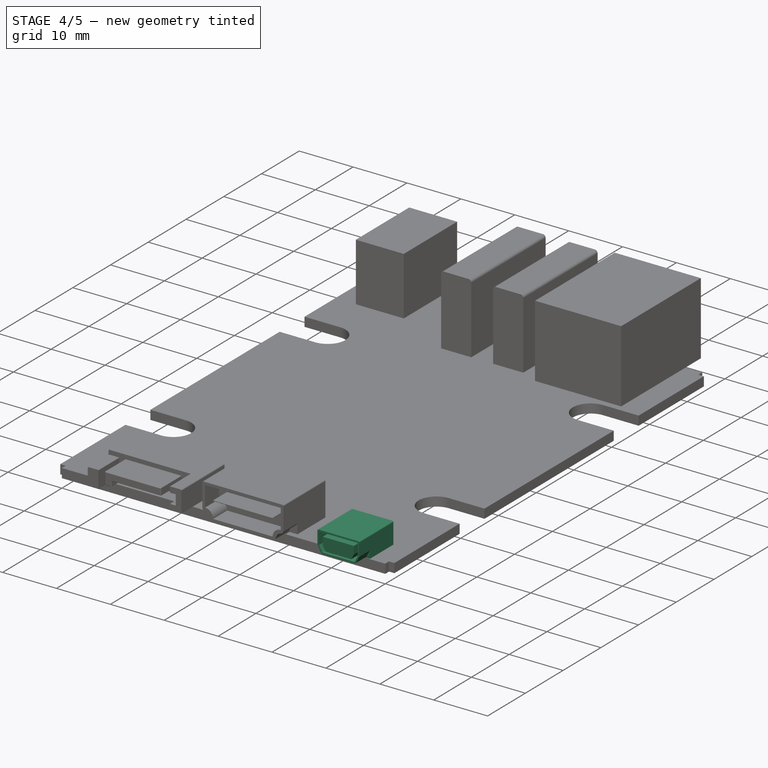
[diagram: stage 4 of 5 — iso view after this stage's code; geometry added in this stage tinted green]
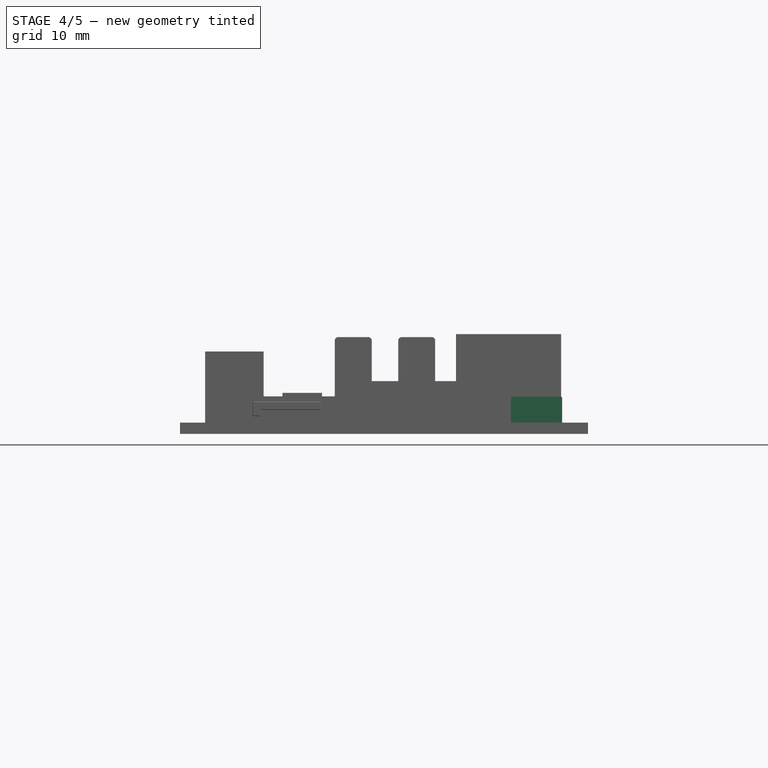
[diagram: stage 4 of 5 — front view after this stage's code; geometry added in this stage tinted green]
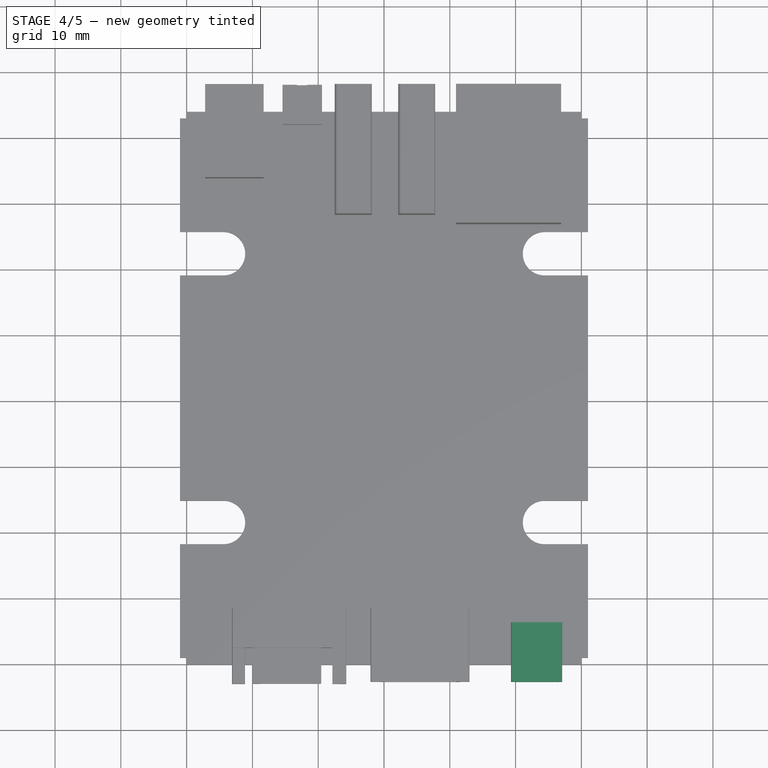
[diagram: stage 4 of 5 — top view after this stage's code; geometry added in this stage tinted green]
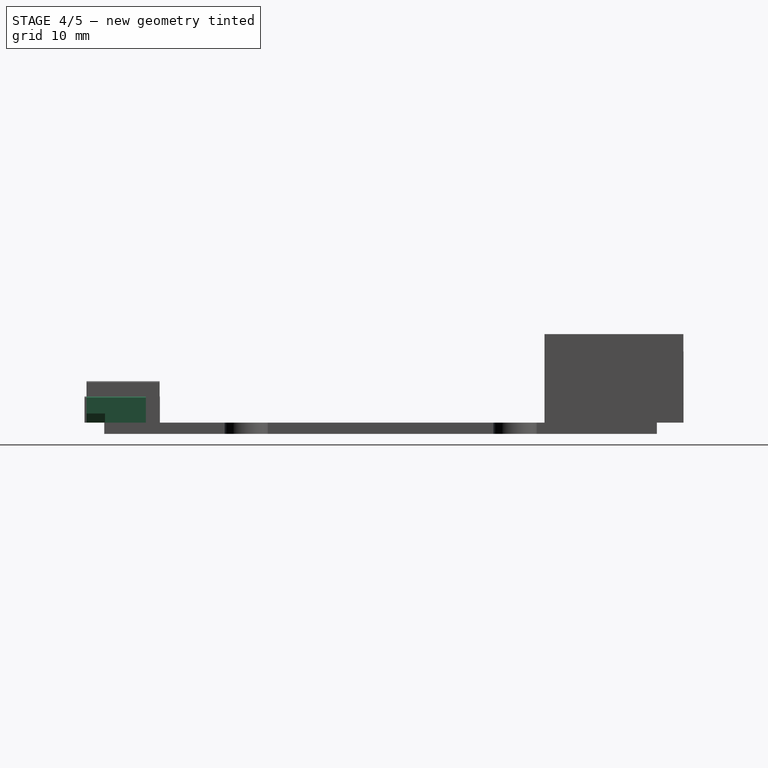
[diagram: stage 4 of 5 — right view after this stage's code; geometry added in this stage tinted green]
FEATURE [PartDesign::Pad] Pad006
  Length = 3.96
  Length2 = 100
  Sketch = -> Sketch005
  Type = 0
FEATURE [Sketcher::SketchObject] Sketch011
  ExternalGeometry = -> [Pad006]
  Placement = pos=(0,-2.7,0) rot=(1,0,0;1.5708rad)
  Support = -> Pad006 [Face37]
  sketch-geometry (18):
    g0: LineSegment StartX=19.3 StartY=3.1 StartZ=0 EndX=19.3 EndY=1.7 EndZ=0
    g1: LineSegment StartX=19.3 StartY=1.7 StartZ=0 EndX=20.05 EndY=1.7 EndZ=0
    g2: LineSegment StartX=20.05 StartY=1.7 StartZ=0 EndX=19.3 EndY=3.1 EndZ=0
    g3: LineSegment StartX=27.07 StartY=3.1 StartZ=0 EndX=27.07 EndY=1.7 EndZ=0
    g4: LineSegment StartX=27.07 StartY=1.7 StartZ=0 EndX=26.32 EndY=1.7 EndZ=0
    g5: LineSegment StartX=26.32 StartY=1.7 StartZ=0 EndX=27.07 EndY=3.1 EndZ=0
    g6: LineSegment StartX=20.3 StartY=4.66 StartZ=0 EndX=20.3 EndY=3.23333 EndZ=0
    g7: LineSegment StartX=20.3 StartY=3.23333 StartZ=0 EndX=20.8 EndY=2.3 EndZ=0
    g8: LineSegment StartX=20.8 StartY=2.3 StartZ=0 EndX=25.57 EndY=2.3 EndZ=0
    g9: LineSegment StartX=25.57 StartY=2.3 StartZ=0 EndX=26.07 EndY=3.23333 EndZ=0
    g10: LineSegment StartX=26.07 StartY=3.23333 StartZ=0 EndX=26.07 EndY=4.66 EndZ=0
    g11: LineSegment StartX=26.07 StartY=4.66 StartZ=0 EndX=20.3 EndY=4.66 EndZ=0
    g12: LineSegment StartX=19.6 StartY=5.36 StartZ=0 EndX=26.77 EndY=5.36 EndZ=0
    g13: LineSegment StartX=26.77 StartY=5.36 StartZ=0 EndX=26.77 EndY=3.09 EndZ=0
    g14: LineSegment StartX=26.77 StartY=3.09 StartZ=0 EndX=26.1861 EndY=2 EndZ=0
    g15: LineSegment StartX=26.1861 StartY=2 StartZ=0 EndX=20.1839 EndY=2 EndZ=0
    g16: LineSegment StartX=20.1839 StartY=2 StartZ=0 EndX=19.6 EndY=3.09 EndZ=0
    g17: LineSegment StartX=19.6 StartY=3.09 StartZ=0 EndX=19.6 EndY=5.36 EndZ=0
  constraints (52):
    c: Vertical(g0)
    c: Coincident(g0,g1)
    c: Horizontal(g1)
    c: Coincident(g1,g2)
    c: Coincident(g2,g0)
    c: Vertical(g3)
    c: Coincident(g3,g4)
    c: Horizontal(g4)
    c: Coincident(g4,g5)
    c: Coincident(g5,g3)
    c: Equal(g3,g0)
    c: Equal(g1,g4)
    c: DistanceY(g3) = -1.4
    c: DistanceX(g4) = -0.75
    c: Coincident(g3,g-5)
    c: Coincident(g0,g-4)
    c: Vertical(g6)
    c: Coincident(g6,g7)
    c: Coincident(g7,g8)
    c: Coincident(g8,g9)
    c: Coincident(g9,g10)
    c: Vertical(g10)
    c: Coincident(g10,g11)
    c: Coincident(g11,g6)
    c: Horizontal(g11)
    c: Parallel(g11,g8)
    c: Parallel(g9,g5)
    c: Parallel(g7,g2)
    c: DistanceY(g7,g1) = -0.6
    c: DistanceX(g7,g1) = -0.75
    c: DistanceX(g8,g4) = 0.75
    c: DistanceX(g9,g3) = 1
    c: DistanceX(g0,g6) = 1
    c: DistanceY(g6,g-3) = 1
    c: Horizontal(g12)
    c: Coincident(g12,g13)
    c: Vertical(g13)
    c: Coincident(g13,g14)
    c: Coincident(g14,g15)
    c: Horizontal(g15)
    c: Coincident(g15,g16)
    c: Coincident(g16,g17)
    c: Coincident(g17,g12)
    c: Vertical(g17)
    c: DistanceY(g12,g-3) = 0.3
    c: DistanceX(g12,g-3) = -0.3
    c: Parallel(g16,g2)
    c: DistanceY(g17) = 2.27
    c: Equal(g16,g14)
    c: DistanceX(g13,g3) = 0.3
    c: DistanceY(g15,g1) = -0.3
    c: Parallel(g14,g5)
FEATURE [PartDesign::Pocket] Pocket
  Length = 2.8
  Sketch = -> Sketch011
  Type = 0
FEATURE [PartDesign::Fillet] Fillet
  Base = -> Pocket [Edge112]
  Radius = 0.2
FEATURE [PartDesign::Fillet] Fillet001
  Base = -> Fillet [Edge7]
  Radius = 0.2
FEATURE [PartDesign::Fillet] Fillet007
  Base = -> Fillet001 [Edge19]
  Radius = 0.2
FEATURE [PartDesign::Fillet] Fillet008
  Base = -> Fillet007 [Edge66]
  Radius = 0.5
FEATURE [PartDesign::Fillet] Fillet009
  Base = -> Fillet008 [Edge34,Edge27]
  Radius = 0.5
FEATURE [PartDesign::Fillet] Fillet010
  Base = -> Fillet003 [Edge65,Edge17,Edge19,Edge68]
  Radius = 0.5
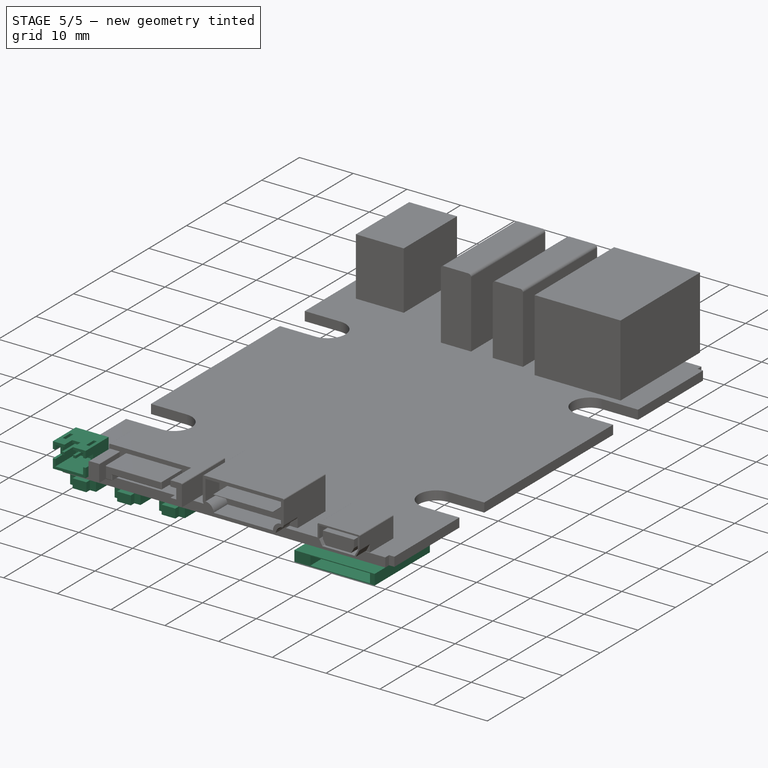
[diagram: stage 5 of 5 — iso view after this stage's code; geometry added in this stage tinted green]
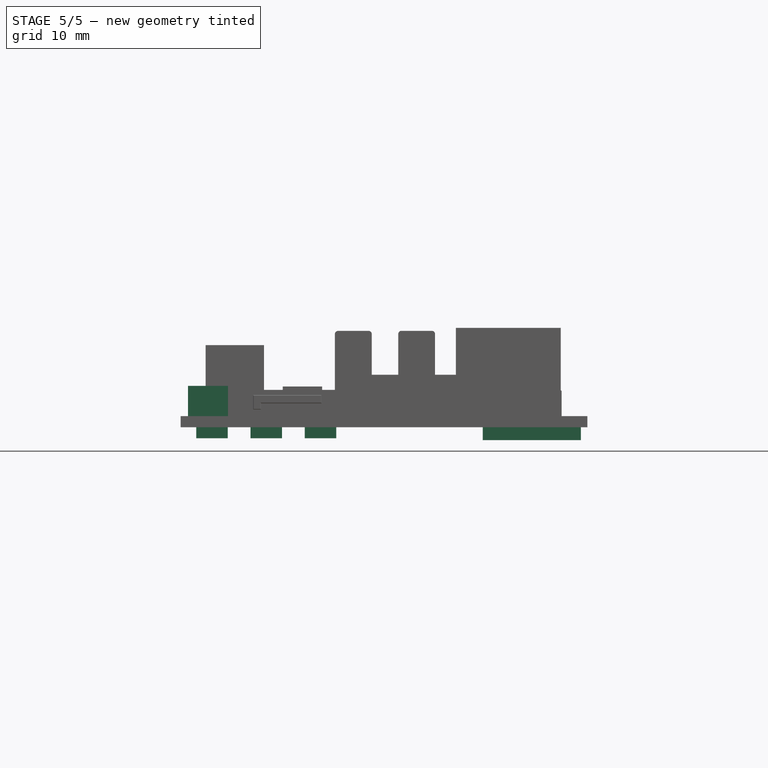
[diagram: stage 5 of 5 — front view after this stage's code; geometry added in this stage tinted green]
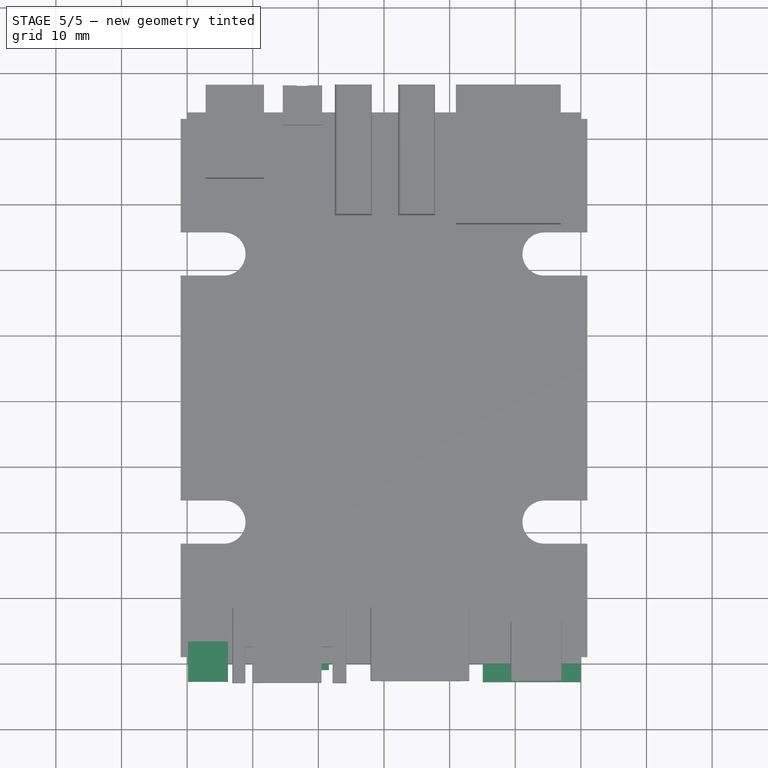
[diagram: stage 5 of 5 — top view after this stage's code; geometry added in this stage tinted green]
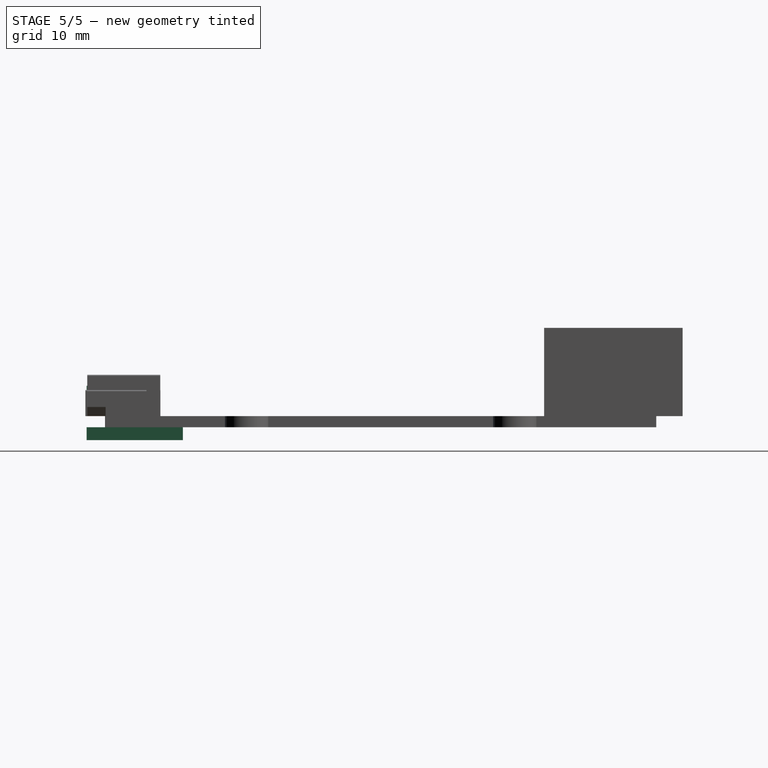
[diagram: stage 5 of 5 — right view after this stage's code; geometry added in this stage tinted green]
FEATURE [Sketcher::SketchObject] Sketch001  label="PowerJack"
  ExternalGeometry = -> [Pad]
  Placement = pos=(0,0,1.7) rot=(0,0,1;0rad)
  Support = -> Pad [Face32]
  sketch-geometry (4):
    g0: LineSegment StartX=-27.19 StartY=88.03 StartZ=0 EndX=-18.29 EndY=88.03 EndZ=0
    g1: LineSegment StartX=-18.29 StartY=88.03 StartZ=0 EndX=-18.29 EndY=73.88 EndZ=0
    g2: LineSegment StartX=-18.29 StartY=73.88 StartZ=0 EndX=-27.19 EndY=73.88 EndZ=0
    g3: LineSegment StartX=-27.19 StartY=73.88 StartZ=0 EndX=-27.19 EndY=88.03 EndZ=0
  constraints (12):
    c: Coincident(g0,g1)
    c: Coincident(g1,g2)
    c: Coincident(g2,g3)
    c: Coincident(g3,g0)
    c: Horizontal(g0)
    c: Horizontal(g2)
    c: Vertical(g1)
    c: Vertical(g3)
    c: DistanceX(g0) = 8.9
    c: DistanceY(g1) = -14.15
    c: DistanceY(g0,g-4) = -5.03
    c: DistanceX(g-4,g0) = 3.81
FEATURE [Sketcher::SketchObject] Sketch002  label="LiPo"
  ExternalGeometry = -> [Pad]
  Placement = pos=(0,0,1.7) rot=(0,0,1;0rad)
  Support = -> Pad [Face32]
  sketch-geometry (5):
    g0: LineSegment StartX=-15.43 StartY=88.03 StartZ=0 EndX=-9.43 EndY=88.03 EndZ=0
    g1: LineSegment StartX=-9.43 StartY=88.03 StartZ=0 EndX=-9.43 EndY=82.03 EndZ=0
    g2: LineSegment StartX=-9.43 StartY=82.03 StartZ=0 EndX=-15.43 EndY=82.03 EndZ=0
    g3: LineSegment StartX=-15.43 StartY=82.03 StartZ=0 EndX=-15.43 EndY=88.03 EndZ=0
    g4: LineSegment [constr] StartX=-12.43 StartY=88.03 StartZ=0 EndX=-12.43 EndY=82.03 EndZ=0
  constraints (16):
    c: Coincident(g0,g1)
    c: Coincident(g1,g2)
    c: Coincident(g2,g3)
    c: Coincident(g3,g0)
    c: Horizontal(g0)
    c: Horizontal(g2)
    c: Vertical(g1)
    c: Vertical(g3)
    c: DistanceX(g0) = 6
    c: DistanceY(g1) = -6
    c: PointOnObject(g4,g0)
    c: Vertical(g4)
    c: DistanceX(g4,g0) = 3
    c: PointOnObject(g4,g2)
    c: DistanceX(g4,g-3) = 43.43
    c: DistanceY(g-3,g0) = 5.03
FEATURE [Sketcher::SketchObject] Sketch003  label="USB Hosts"
  ExternalGeometry = -> [Pad]
  Placement = pos=(0,0,1.7) rot=(0,0,1;0rad)
  Support = -> Pad [Face32]
  sketch-geometry (10):
    g0: LineSegment StartX=-7.48 StartY=88.02 StartZ=0 EndX=-1.87 EndY=88.02 EndZ=0
    g1: LineSegment StartX=-1.87 StartY=88.02 StartZ=0 EndX=-1.87 EndY=68.32 EndZ=0
    g2: LineSegment StartX=-1.87 StartY=68.32 StartZ=0 EndX=-7.48 EndY=68.32 EndZ=0
    g3: LineSegment StartX=-7.48 StartY=68.32 StartZ=0 EndX=-7.48 EndY=88.02 EndZ=0
    g4: LineSegment [constr] StartX=-4.68 StartY=88.02 StartZ=0 EndX=-4.68 EndY=68.32 EndZ=0
    g5: LineSegment StartX=2.17 StartY=88.02 StartZ=0 EndX=7.78 EndY=88.02 EndZ=0
    g6: LineSegment StartX=7.78 StartY=88.02 StartZ=0 EndX=7.78 EndY=68.32 EndZ=0
    g7: LineSegment StartX=7.78 StartY=68.32 StartZ=0 EndX=2.17 EndY=68.32 EndZ=0
    g8: LineSegment StartX=2.17 StartY=68.32 StartZ=0 EndX=2.17 EndY=88.02 EndZ=0
    g9: LineSegment [constr] StartX=4.97 StartY=88.02 StartZ=0 EndX=4.97 EndY=68.32 EndZ=0
  constraints (32):
    c: Coincident(g0,g1)
    c: Coincident(g1,g2)
    c: Coincident(g2,g3)
    c: Coincident(g3,g0)
    c: Horizontal(g0)
    c: Horizontal(g2)
    c: Vertical(g1)
    c: Vertical(g3)
    c: DistanceY(g1) = -19.7
    c: DistanceX(g0) = 5.61
    c: Vertical(g4)
    c: DistanceX(g4,g1) = 2.81
    c: PointOnObject(g4,g2)
    c: Equal(g4,g1)
    c: DistanceY(g-3,g0) = 5.02
    c: DistanceX(g-3,g4) = -35.68
    c: Coincident(g5,g6)
    c: Coincident(g6,g7)
    c: Coincident(g7,g8)
    c: Coincident(g8,g5)
    c: Horizontal(g5)
    c: Horizontal(g7)
    c: Vertical(g6)
    c: Vertical(g8)
    c: Equal(g8,g3)
    c: Equal(g5,g0)
    c: DistanceY(g5,g-3) = -5.02
    c: Vertical(g9)
    c: PointOnObject(g9,g7)
    c: Equal(g9,g4)
    c: DistanceX(g9,g6) = 2.81
    c: DistanceX(g9,g-3) = 26.03
FEATURE [Sketcher::SketchObject] Sketch004  label="Ethernet"
  ExternalGeometry = -> [Pad]
  Placement = pos=(0,0,1.7) rot=(0,0,1;0rad)
  Support = -> Pad [Face32]
  sketch-geometry (5):
    g0: LineSegment StartX=10.945 StartY=88.02 StartZ=0 EndX=26.925 EndY=88.02 EndZ=0
    g1: LineSegment StartX=26.925 StartY=88.02 StartZ=0 EndX=26.925 EndY=66.91 EndZ=0
    g2: LineSegment StartX=26.925 StartY=66.91 StartZ=0 EndX=10.945 EndY=66.91 EndZ=0
    g3: LineSegment StartX=10.945 StartY=66.91 StartZ=0 EndX=10.945 EndY=88.02 EndZ=0
    g4: LineSegment [constr] StartX=18.935 StartY=88.02 StartZ=0 EndX=18.935 EndY=66.91 EndZ=0
  constraints (17):
    c: Coincident(g0,g1)
    c: Coincident(g1,g2)
    c: Coincident(g2,g3)
    c: Coincident(g3,g0)
    c: Horizontal(g0)
    c: Horizontal(g2)
    c: Vertical(g1)
    c: Vertical(g3)
    c: DistanceX(g0) = 15.98
    c: DistanceY(g1) = -21.11
    c: PointOnObject(g4,g0)
    c: PointOnObject(g4,g2)
    c: Vertical(g4)
    c: Equal(g1,g4)
    c: DistanceX(g4,g1) = 7.99
    c: DistanceX(g-3,g4) = -12.065
    c: DistanceY(g0,g-3) = -5.02
FEATURE [Sketcher::SketchObject] Sketch005  label="USB OTG"
  ExternalGeometry = -> [Pad]
  Placement = pos=(0,0,1.7) rot=(0,0,1;0rad)
  Support = -> Pad [Face32]
  sketch-geometry (4):
    g0: LineSegment StartX=19.3 StartY=6.33 StartZ=0 EndX=27.07 EndY=6.33 EndZ=0
    g1: LineSegment StartX=27.07 StartY=6.33 StartZ=0 EndX=27.07 EndY=-2.7 EndZ=0
    g2: LineSegment StartX=27.07 StartY=-2.7 StartZ=0 EndX=19.3 EndY=-2.7 EndZ=0
    g3: LineSegment StartX=19.3 StartY=-2.7 StartZ=0 EndX=19.3 EndY=6.33 EndZ=0
  constraints (12):
    c: Coincident(g0,g1)
    c: Coincident(g1,g2)
    c: Coincident(g2,g3)
    c: Coincident(g3,g0)
    c: Horizontal(g0)
    c: Horizontal(g2)
    c: Vertical(g1)
    c: Vertical(g3)
    c: DistanceY(g1) = -9.03
    c: DistanceX(g2) = -7.77
    c: DistanceY(g-3,g1) = -3.7
    c: DistanceX(g1,g-3) = 3.93
FEATURE [Sketcher::SketchObject] Sketch006  label="HDMI"
  ExternalGeometry = -> [Pad]
  Placement = pos=(0,0,1.7) rot=(0,0,1;0rad)
  Support = -> Pad [Face32]
  sketch-geometry (4):
    g0: LineSegment StartX=-2.05 StartY=8.42 StartZ=0 EndX=13 EndY=8.42 EndZ=0
    g1: LineSegment StartX=13 StartY=8.42 StartZ=0 EndX=13 EndY=-2.7 EndZ=0
    g2: LineSegment StartX=13 StartY=-2.7 StartZ=0 EndX=-2.05 EndY=-2.7 EndZ=0
    g3: LineSegment StartX=-2.05 StartY=-2.7 StartZ=0 EndX=-2.05 EndY=8.42 EndZ=0
  constraints (12):
    c: Coincident(g0,g1)
    c: Coincident(g1,g2)
    c: Coincident(g2,g3)
    c: Coincident(g3,g0)
    c: Horizontal(g0)
    c: Horizontal(g2)
    c: Vertical(g1)
    c: Vertical(g3)
    c: DistanceY(g1) = -11.12
    c: DistanceX(g2) = -15.05
    c: DistanceY(g-3,g1) = -3.7
    c: DistanceX(g1,g-3) = 18
FEATURE [Sketcher::SketchObject] Sketch007  label="SATA"
  ExternalGeometry = -> [Pad]
  Placement = pos=(0,0,1.7) rot=(0,0,1;0rad)
  Support = -> Pad [Face32]
  sketch-geometry (4):
    g0: LineSegment StartX=-23.1 StartY=8.44 StartZ=0 EndX=-5.73 EndY=8.44 EndZ=0
    g1: LineSegment StartX=-5.73 StartY=8.44 StartZ=0 EndX=-5.73 EndY=-3 EndZ=0
    g2: LineSegment StartX=-5.73 StartY=-3 StartZ=0 EndX=-23.1 EndY=-3 EndZ=0
    g3: LineSegment StartX=-23.1 StartY=-3 StartZ=0 EndX=-23.1 EndY=8.44 EndZ=0
  constraints (12):
    c: Coincident(g0,g1)
    c: Coincident(g1,g2)
    c: Coincident(g2,g3)
    c: Coincident(g3,g0)
    c: Horizontal(g0)
    c: Horizontal(g2)
    c: Vertical(g1)
    c: Vertical(g3)
    c: DistanceX(g0) = 17.37
    c: DistanceY(g1) = -11.44
    c: DistanceX(g-3,g1) = 24.27
    c: DistanceY(g-3,g2) = -4
FEATURE [Sketcher::SketchObject] Sketch008  label="SATA Pwr"
  ExternalGeometry = -> [Pad]
  Placement = pos=(0,0,1.7) rot=(0,0,1;0rad)
  Support = -> Pad [Face32]
  sketch-geometry (4):
    g0: LineSegment StartX=-29.87 StartY=3.3 StartZ=0 EndX=-23.77 EndY=3.3 EndZ=0
    g1: LineSegment StartX=-23.77 StartY=3.3 StartZ=0 EndX=-23.77 EndY=-2.8 EndZ=0
    g2: LineSegment StartX=-23.77 StartY=-2.8 StartZ=0 EndX=-29.87 EndY=-2.8 EndZ=0
    g3: LineSegment StartX=-29.87 StartY=-2.8 StartZ=0 EndX=-29.87 EndY=3.3 EndZ=0
  constraints (12):
    c: Coincident(g0,g1)
    c: Coincident(g1,g2)
    c: Coincident(g2,g3)
    c: Coincident(g3,g0)
    c: Horizontal(g0)
    c: Horizontal(g2)
    c: Vertical(g1)
    c: Vertical(g3)
    c: DistanceY(g1) = -6.1
    c: DistanceX(g2) = -6.1
    c: DistanceX(g-3,g1) = 6.23
    c: DistanceY(g2,g-3) = 3.8
FEATURE [Sketcher::SketchObject] Sketch009  label="MicroSD"
  ExternalGeometry = -> [Pad]
  Placement = pos=(0,0,0) rot=(1,0,0;3.14159rad)
  Support = -> Pad [Face31]
  sketch-geometry (4):
    g0: LineSegment StartX=15.05 StartY=2.8 StartZ=0 EndX=30 EndY=2.8 EndZ=0
    g1: LineSegment StartX=30 StartY=2.8 StartZ=0 EndX=30 EndY=-11.87 EndZ=0
    g2: LineSegment StartX=30 StartY=-11.87 StartZ=0 EndX=15.05 EndY=-11.87 EndZ=0
    g3: LineSegment StartX=15.05 StartY=-11.87 StartZ=0 EndX=15.05 EndY=2.8 EndZ=0
  constraints (12):
    c: Coincident(g0,g1)
    c: Coincident(g1,g2)
    c: Coincident(g2,g3)
    c: Coincident(g3,g0)
    c: Horizontal(g0)
    c: Horizontal(g2)
    c: Vertical(g1)
    c: Vertical(g3)
    c: DistanceY(g1) = -14.67
    c: DistanceX(g2) = -14.95
    c: DistanceX(g-3,g0) = 0
    c: DistanceY(g-3,g0) = 3.8
FEATURE [Sketcher::SketchObject] Sketch010  label="Buttons"
  ExternalGeometry = -> [Pad]
  Placement = pos=(0,0,0) rot=(1,0,0;3.14159rad)
  Support = -> Pad [Face31]
  sketch-geometry (24):
    g0: LineSegment StartX=-23.81 StartY=0 StartZ=0 EndX=-23.81 EndY=-3.7 EndZ=0
    g1: LineSegment StartX=-23.81 StartY=-3.7 StartZ=0 EndX=-28.61 EndY=-3.7 EndZ=0
    g2: LineSegment StartX=-28.61 StartY=-3.7 StartZ=0 EndX=-28.61 EndY=0 EndZ=0
    g3: LineSegment StartX=-28.61 StartY=0 StartZ=0 EndX=-27.485 EndY=0 EndZ=0
    g4: LineSegment StartX=-27.485 StartY=0 StartZ=0 EndX=-27.485 EndY=0.95 EndZ=0
    g5: LineSegment StartX=-27.485 StartY=0.95 StartZ=0 EndX=-24.935 EndY=0.95 EndZ=0
    g6: LineSegment StartX=-24.935 StartY=0.95 StartZ=0 EndX=-24.935 EndY=0 EndZ=0
    g7: LineSegment StartX=-24.935 StartY=0 StartZ=0 EndX=-23.81 EndY=0 EndZ=0
    g8: LineSegment StartX=-19.215 StartY=0.95 StartZ=0 EndX=-19.215 EndY=0 EndZ=0
    g9: LineSegment StartX=-19.215 StartY=0 StartZ=0 EndX=-20.34 EndY=0 EndZ=0
    g10: LineSegment StartX=-20.34 StartY=0 StartZ=0 EndX=-20.34 EndY=-3.7 EndZ=0
    g11: LineSegment StartX=-20.34 StartY=-3.7 StartZ=0 EndX=-15.54 EndY=-3.7 EndZ=0
    g12: LineSegment StartX=-15.54 StartY=-3.7 StartZ=0 EndX=-15.54 EndY=0 EndZ=0
    g13: LineSegment StartX=-15.54 StartY=0 StartZ=0 EndX=-16.665 EndY=0 EndZ=0
    g14: LineSegment StartX=-16.665 StartY=0 StartZ=0 EndX=-16.665 EndY=0.95 EndZ=0
    g15: LineSegment StartX=-16.665 StartY=0.95 StartZ=0 EndX=-19.215 EndY=0.95 EndZ=0
    g16: LineSegment StartX=-12.07 StartY=0 StartZ=0 EndX=-12.07 EndY=-3.7 EndZ=0
    g17: LineSegment StartX=-12.07 StartY=-3.7 StartZ=0 EndX=-7.27 EndY=-3.7 EndZ=0
    g18: LineSegment StartX=-7.27 StartY=-3.7 StartZ=0 EndX=-7.27 EndY=0 EndZ=0
    g19: LineSegment StartX=-7.27 StartY=0 StartZ=0 EndX=-8.395 EndY=0 EndZ=0
    g20: LineSegment StartX=-8.395 StartY=0 StartZ=0 EndX=-8.395 EndY=0.95 EndZ=0
    g21: LineSegment StartX=-8.395 StartY=0.95 StartZ=0 EndX=-10.945 EndY=0.95 EndZ=0
    g22: LineSegment StartX=-10.945 StartY=0.95 StartZ=0 EndX=-10.945 EndY=0 EndZ=0
    g23: LineSegment StartX=-10.945 StartY=0 StartZ=0 EndX=-12.07 EndY=0 EndZ=0
  constraints (74):
    c: Coincident(g0,g1)
    c: Horizontal(g1)
    c: Vertical(g0)
    c: Vertical(g2)
    c: Coincident(g2,g3)
    c: Horizontal(g3)
    c: Coincident(g3,g4)
    c: Vertical(g4)
    c: Coincident(g4,g5)
    c: Horizontal(g5)
    c: Coincident(g5,g6)
    c: Vertical(g6)
    c: Coincident(g6,g7)
    c: Coincident(g7,g0)
    c: Horizontal(g7)
    c: Coincident(g1,g2)
    c: Equal(g3,g7)
    c: DistanceX(g1) = -4.8
    c: DistanceY(g2) = 3.7
    c: DistanceY(g1,g4) = 4.65
    c: Equal(g4,g6)
    c: Equal(g0,g2)
    c: DistanceX(g5) = 2.55
    c: DistanceY(g-3,g2) = 0
    c: DistanceX(g2,g-3) = -1.39
    c: PointOnObject(g8,g-1)
    c: Vertical(g8)
    c: Coincident(g8,g9)
    c: PointOnObject(g9,g-1)
    c: Coincident(g9,g10)
    c: Vertical(g10)
    c: Coincident(g10,g11)
    c: Horizontal(g11)
    c: Coincident(g11,g12)
    c: Vertical(g12)
    c: Coincident(g12,g13)
    c: Horizontal(g13)
    c: Coincident(g13,g14)
    c: Vertical(g14)
    c: Coincident(g14,g15)
    c: Coincident(g15,g8)
    c: Vertical(g16)
    c: Coincident(g16,g17)
    c: Horizontal(g17)
    c: Coincident(g17,g18)
    c: PointOnObject(g18,g-1)
    c: Vertical(g18)
    c: Coincident(g18,g19)
    c: PointOnObject(g19,g-1)
    c: Coincident(g19,g20)
    c: Vertical(g20)
    c: Coincident(g20,g21)
    c: Horizontal(g21)
    c: Coincident(g21,g22)
    c: Vertical(g22)
    c: Coincident(g22,g23)
    c: Coincident(g23,g16)
    c: Horizontal(g23)
    c: Equal(g21,g15)
    c: Equal(g15,g5)
    c: Equal(g14,g8)
    c: Equal(g8,g22)
    c: Equal(g22,g20)
    c: Equal(g20,g6)
    c: Equal(g13,g9)
    c: Equal(g9,g23)
    c: Equal(g23,g19)
    c: Equal(g19,g7)
    c: Equal(g16,g18)
    c: Equal(g18,g12)
    c: Equal(g12,g10)
    c: Equal(g10,g0)
    c: DistanceX(g0,g9) = 3.47
    c: DistanceX(g12,g16) = 3.47
FEATURE [PartDesign::Pad] Pad001
  Length = 1.67
  Length2 = 100
  Sketch = -> Sketch010
  Type = 0
FEATURE [PartDesign::Pad] Pad002
  Length = 1.96
  Length2 = 100
  Sketch = -> Sketch009
  Type = 0
FEATURE [PartDesign::Pad] Pad003
  Length = 4.6
  Length2 = 100
  Sketch = -> Sketch008
  Type = 0
FEATURE [Sketcher::SketchObject] Sketch014
  ExternalGeometry = -> [Pad003]
  Placement = pos=(0,-2.8,0) rot=(1,0,0;1.5708rad)
  Support = -> Pad003 [Face37]
  sketch-geometry (12):
    g0: LineSegment StartX=-29.4 StartY=5.83 StartZ=0 EndX=-24.24 EndY=5.83 EndZ=0
    g1: LineSegment StartX=-24.24 StartY=5.83 StartZ=0 EndX=-24.24 EndY=2.17 EndZ=0
    g2: LineSegment StartX=-24.24 StartY=2.17 StartZ=0 EndX=-29.4 EndY=2.17 EndZ=0
    g3: LineSegment StartX=-29.4 StartY=2.17 StartZ=0 EndX=-29.4 EndY=5.83 EndZ=0
    g4: LineSegment StartX=-28.2 StartY=5 StartZ=0 EndX=-27.72 EndY=5 EndZ=0
    g5: LineSegment StartX=-27.72 StartY=5 StartZ=0 EndX=-27.72 EndY=4.52 EndZ=0
    g6: LineSegment StartX=-27.72 StartY=4.52 StartZ=0 EndX=-28.2 EndY=4.52 EndZ=0
    g7: LineSegment StartX=-28.2 StartY=4.52 StartZ=0 EndX=-28.2 EndY=5 EndZ=0
    g8: LineSegment StartX=-26.1 StartY=5 StartZ=0 EndX=-25.62 EndY=5 EndZ=0
    g9: LineSegment StartX=-25.62 StartY=5 StartZ=0 EndX=-25.62 EndY=4.52 EndZ=0
    g10: LineSegment StartX=-25.62 StartY=4.52 StartZ=0 EndX=-26.1 EndY=4.52 EndZ=0
    g11: LineSegment StartX=-26.1 StartY=4.52 StartZ=0 EndX=-26.1 EndY=5 EndZ=0
  constraints (40):
    c: Coincident(g0,g1)
    c: Coincident(g1,g2)
    c: Coincident(g2,g3)
    c: Coincident(g3,g0)
    c: Horizontal(g0)
    c: Horizontal(g2)
    c: Vertical(g1)
    c: Vertical(g3)
    c: DistanceX(g-4,g0) = 0.47
    c: DistanceY(g-4,g0) = -0.47
    c: DistanceY(g1,g-6) = -0.47
    c: DistanceX(g1,g-6) = 0.47
    c: Coincident(g4,g5)
    c: Coincident(g5,g6)
    c: Coincident(g6,g7)
    c: Coincident(g7,g4)
    c: Horizontal(g4)
    c: Horizontal(g6)
    c: Vertical(g5)
    c: Vertical(g7)
    c: Coincident(g8,g9)
    c: Coincident(g9,g10)
    c: Coincident(g10,g11)
    c: Coincident(g11,g8)
    c: Horizontal(g8)
    c: Horizontal(g10)
    c: Vertical(g9)
    c: Vertical(g11)
    c: Equal(g6,g10)
    c: Equal(g10,g9)
    c: Equal(g9,g8)
    c: Equal(g8,g11)
    c: Equal(g11,g5)
    c: Equal(g5,g4)
    c: Equal(g4,g7)
    c: DistanceX(g6) = -0.48
    c: DistanceX(g5,g-5) = -2.15
    c: DistanceX(g6,g10) = 2.1
    c: DistanceY(g10,g5) = 0
    c: DistanceY(g-4,g6) = -1.78
FEATURE [PartDesign::Pocket] Pocket003
  Length = 5.44
  Sketch = -> Sketch014
  Type = 0
FEATURE [Sketcher::SketchObject] Sketch015
  ExternalGeometry = -> [Pocket003]
  Placement = pos=(0,-2.8,0) rot=(1,0,0;1.5708rad)
  Support = -> Pocket003 [Face37]
  sketch-geometry (12):
    g0: LineSegment StartX=-29.87 StartY=5 StartZ=0 EndX=-29.4 EndY=5 EndZ=0
    g1: LineSegment StartX=-29.4 StartY=5 StartZ=0 EndX=-29.4 EndY=3.44 EndZ=0
    g2: LineSegment StartX=-29.4 StartY=3.44 StartZ=0 EndX=-29.87 EndY=3.44 EndZ=0
    g3: LineSegment StartX=-29.87 StartY=3.44 StartZ=0 EndX=-29.87 EndY=5 EndZ=0
    g4: LineSegment StartX=-24.24 StartY=5 StartZ=0 EndX=-23.77 EndY=5 EndZ=0
    g5: LineSegment StartX=-23.77 StartY=5 StartZ=0 EndX=-23.77 EndY=3.44 EndZ=0
    g6: LineSegment StartX=-23.77 StartY=3.44 StartZ=0 EndX=-24.24 EndY=3.44 EndZ=0
    g7: LineSegment StartX=-24.24 StartY=3.44 StartZ=0 EndX=-24.24 EndY=5 EndZ=0
    g8: LineSegment StartX=-27.69 StartY=6.3 StartZ=0 EndX=-26.13 EndY=6.3 EndZ=0
    g9: LineSegment StartX=-26.13 StartY=6.3 StartZ=0 EndX=-26.13 EndY=5.83 EndZ=0
    g10: LineSegment StartX=-26.13 StartY=5.83 StartZ=0 EndX=-27.69 EndY=5.83 EndZ=0
    g11: LineSegment StartX=-27.69 StartY=5.83 StartZ=0 EndX=-27.69 EndY=6.3 EndZ=0
  constraints (36):
    c: Coincident(g0,g1)
    c: Coincident(g1,g2)
    c: Coincident(g2,g3)
    c: Coincident(g3,g0)
    c: Horizontal(g0)
    c: Horizontal(g2)
    c: Vertical(g1)
    c: Vertical(g3)
    c: Coincident(g4,g5)
    c: Coincident(g5,g6)
    c: Coincident(g6,g7)
    c: Coincident(g7,g4)
    c: Horizontal(g4)
    c: Horizontal(g6)
    c: Vertical(g5)
    c: Vertical(g7)
    c: Coincident(g8,g9)
    c: Coincident(g9,g10)
    c: Coincident(g10,g11)
    c: Coincident(g11,g8)
    c: Horizontal(g8)
    c: Horizontal(g10)
    c: Vertical(g9)
    c: Vertical(g11)
    c: Equal(g2,g6)
    c: Equal(g3,g7)
    c: DistanceY(g0,g-5) = 1.3
    c: DistanceY(g4,g-8) = 1.3
    c: Equal(g7,g8)
    c: Equal(g9,g4)
    c: DistanceX(g8,g-8) = 2.36
    c: PointOnObject(g5,g-8)
    c: PointOnObject(g6,g-7)
    c: PointOnObject(g2,g-5)
    c: DistanceX(g10) = -1.56
    c: PointOnObject(g9,g-3)
FEATURE [PartDesign::Pocket] Pocket004
  Length = 2
  Sketch = -> Sketch015
  Type = 0
FEATURE [Sketcher::SketchObject] Sketch016
  ExternalGeometry = -> [Pocket004]
  Placement = pos=(0,0,6.3) rot=(0,0,1;0rad)
  Support = -> Pocket004 [Face37]
  sketch-geometry (8):
    g0: LineSegment StartX=-29.31 StartY=1 StartZ=0 EndX=-28.71 EndY=1 EndZ=0
    g1: LineSegment StartX=-28.71 StartY=1 StartZ=0 EndX=-28.71 EndY=-1.02 EndZ=0
    g2: LineSegment StartX=-28.71 StartY=-1.02 StartZ=0 EndX=-29.31 EndY=-1.02 EndZ=0
    g3: LineSegment StartX=-29.31 StartY=-1.02 StartZ=0 EndX=-29.31 EndY=1 EndZ=0
    g4: LineSegment StartX=-24.93 StartY=1 StartZ=0 EndX=-24.33 EndY=1 EndZ=0
    g5: LineSegment StartX=-24.33 StartY=1 StartZ=0 EndX=-24.33 EndY=-1.02 EndZ=0
    g6: LineSegment StartX=-24.33 StartY=-1.02 StartZ=0 EndX=-24.93 EndY=-1.02 EndZ=0
    g7: LineSegment StartX=-24.93 StartY=-1.02 StartZ=0 EndX=-24.93 EndY=1 EndZ=0
  constraints (24):
    c: Coincident(g0,g1)
    c: Coincident(g1,g2)
    c: Coincident(g2,g3)
    c: Coincident(g3,g0)
    c: Horizontal(g0)
    c: Horizontal(g2)
    c: Vertical(g1)
    c: Vertical(g3)
    c: Coincident(g4,g5)
    c: Coincident(g5,g6)
    c: Coincident(g6,g7)
    c: Coincident(g7,g4)
    c: Horizontal(g4)
    c: Horizontal(g6)
    c: Vertical(g5)
    c: Vertical(g7)
    c: Equal(g3,g7)
    c: Equal(g0,g4)
    c: DistanceX(g4) = 0.6
    c: DistanceY(g5) = -2.02
    c: DistanceY(g5,g-3) = -1.78
    c: DistanceX(g5,g-4) = 0.56
    c: DistanceX(g2,g-5) = -0.56
    c: DistanceY(g1,g-3) = -1.78
FEATURE [PartDesign::Pocket] Pocket005
  Length = 1
  Sketch = -> Sketch016
  Type = 0
FEATURE [Sketcher::SketchObject] Sketch017
  ExternalGeometry = -> [Pad002]
  Placement = pos=(0,-2.8,0) rot=(1,0,0;1.5708rad)
  Support = -> Pad002 [Face38]
  sketch-geometry (4):
    g0: LineSegment StartX=18.03 StartY=-1.81 StartZ=0 EndX=18.03 EndY=-0.15 EndZ=0
    g1: LineSegment StartX=18.03 StartY=-0.15 StartZ=0 EndX=29.12 EndY=-0.15 EndZ=0
    g2: LineSegment StartX=29.12 StartY=-0.15 StartZ=0 EndX=29.12 EndY=-1.81 EndZ=0
    g3: LineSegment StartX=29.12 StartY=-1.81 StartZ=0 EndX=18.03 EndY=-1.81 EndZ=0
  constraints (12):
    c: Vertical(g0)
    c: Coincident(g0,g1)
    c: Horizontal(g1)
    c: Coincident(g1,g2)
    c: Vertical(g2)
    c: Coincident(g2,g3)
    c: Coincident(g3,g0)
    c: Horizontal(g3)
    c: DistanceY(g0,g-3) = 0.15
    c: DistanceX(g-3,g0) = 2.98
    c: DistanceY(g0,g-4) = -0.15
    c: DistanceX(g2,g-5) = 0.88
FEATURE [PartDesign::Pocket] Pocket006
  Length = 14.6
  Sketch = -> Sketch017
  Type = 0
FEATURE [PartDesign::Pocket] Pocket007
  Length = 5
  Type = 0
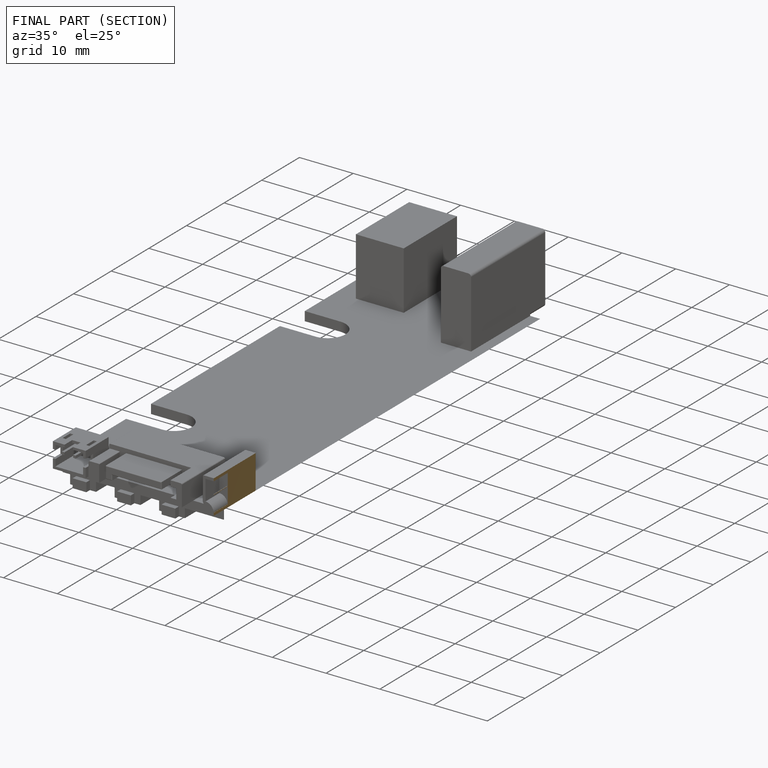
[diagram: finished part — half-section view (interior)]
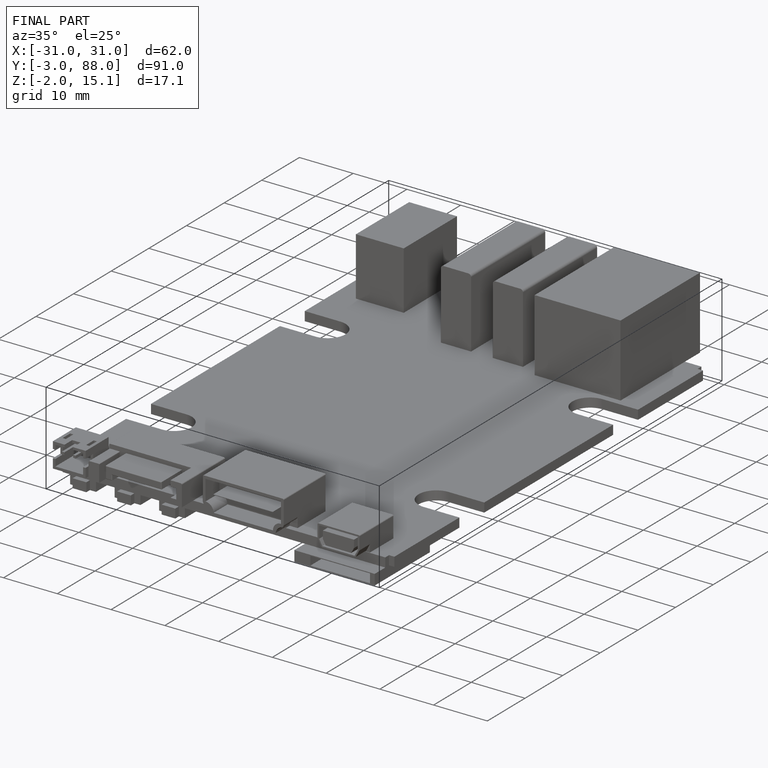
[diagram: finished part — iso view with bounding-box wireframe]
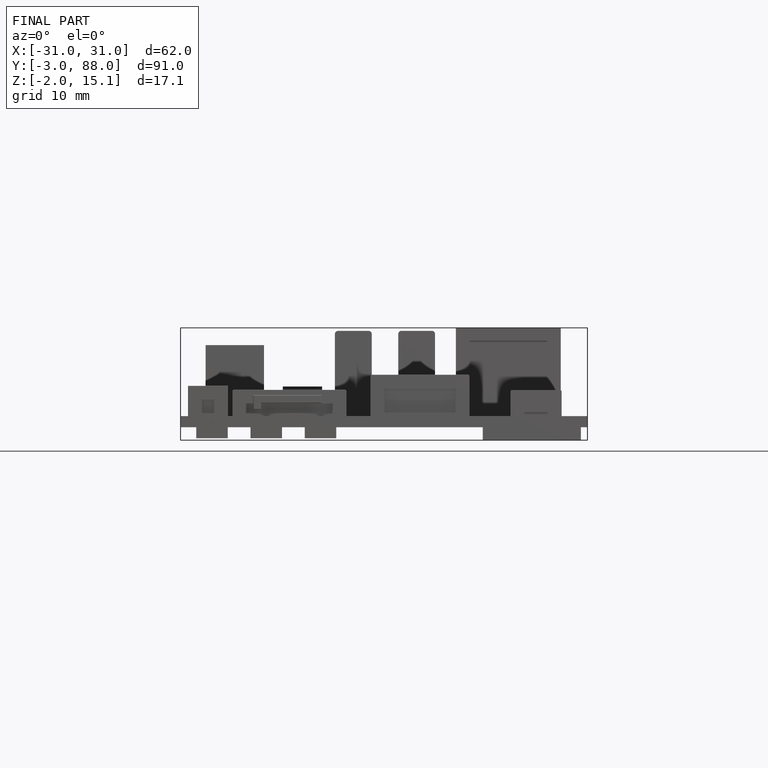
[diagram: finished part — front view with bounding-box wireframe]
